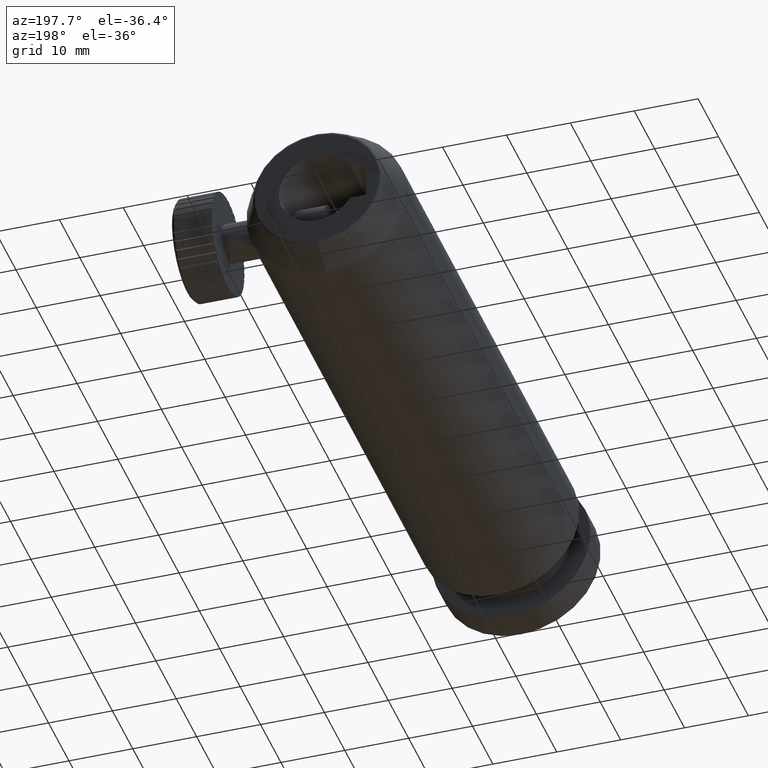
[diagram: clean part render]
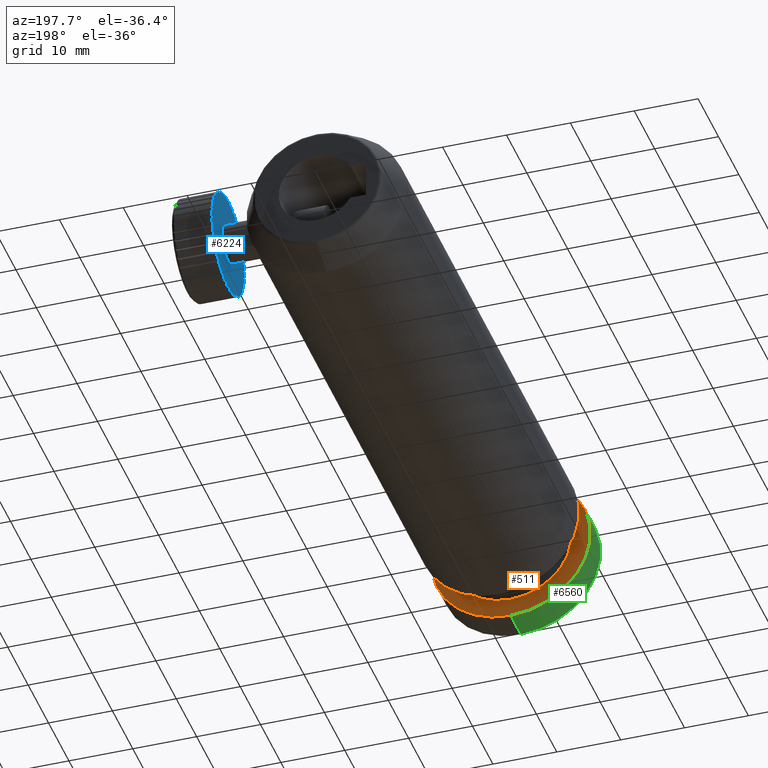
[diagram: same view with three faces highlighted in distinct colors, each labeled with its STEP entity id]
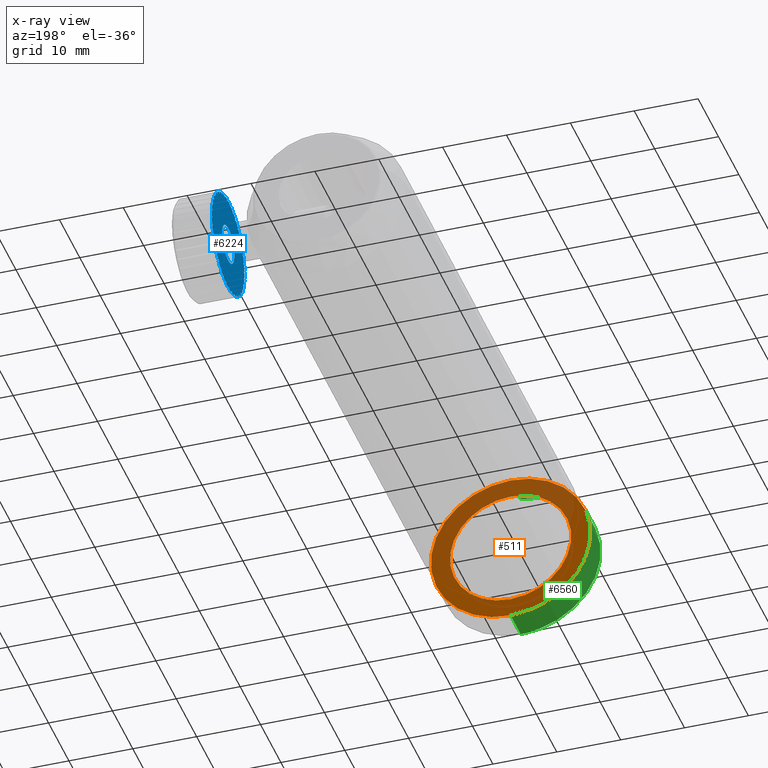
[diagram: x-ray of the same camera — body ghosted, the three highlighted faces saturated]
A machine part, auxiliary view with three faces highlighted in distinct colors.
The next image is the same camera in x-ray (body ghosted, the three faces saturated) — at least one of them is partly hidden behind the body in this view.
Their STEP definitions:

[orange] entity #511 — the highlighted planar face has unit normal (0, -1, -0).
#96 = AXIS2_PLACEMENT_3D ( 'NONE', #1116, #3141, #1638 ) ;
#109 = ORIENTED_EDGE ( 'NONE', *, *, #530, .T. ) ;
#264 = EDGE_LOOP ( 'NONE', ( #2745, #109 ) ) ;
#485 = ORIENTED_EDGE ( 'NONE', *, *, #8267, .F. ) ;
#511 = ADVANCED_FACE ( 'NONE', ( #5561, #2002 ), #8987, .F. ) ;
#530 = EDGE_CURVE ( 'NONE', #1354, #6662, #8390, .T. ) ;
#1116 = CARTESIAN_POINT ( 'NONE',  ( -3.204778668925413854, -7.313612059609842397, 1.686509214775364569E-15 ) ) ;
#1354 = VERTEX_POINT ( 'NONE', #5751 ) ;
#1451 = AXIS2_PLACEMENT_3D ( 'NONE', #5882, #7440, #4579 ) ;
#1638 = DIRECTION ( 'NONE',  ( 0.0000000000000000000, 0.0000000000000000000, -1.000000000000000000 ) ) ;
#1916 = DIRECTION ( 'NONE',  ( 0.0000000000000000000, -1.000000000000000000, -0.0000000000000000000 ) ) ;
#2002 = FACE_OUTER_BOUND ( 'NONE', #7203, .T. ) ;
#2172 = CIRCLE ( 'NONE', #96, 9.500000000000000000 ) ;
#2316 = CARTESIAN_POINT ( 'NONE',  ( -3.204778668925413854, -7.313612059609838845, 1.686509214775364569E-15 ) ) ;
#2682 = DIRECTION ( 'NONE',  ( 0.0000000000000000000, 0.0000000000000000000, -1.000000000000000000 ) ) ;
#2724 = AXIS2_PLACEMENT_3D ( 'NONE', #7679, #1916, #2682 ) ;
#2745 = ORIENTED_EDGE ( 'NONE', *, *, #6217, .T. ) ;
#3141 = DIRECTION ( 'NONE',  ( -0.0000000000000000000, -1.000000000000000000, -0.0000000000000000000 ) ) ;
#3622 = EDGE_CURVE ( 'NONE', #8406, #3910, #8814, .T. ) ;
#3751 = DIRECTION ( 'NONE',  ( 0.0000000000000000000, 0.0000000000000000000, -1.000000000000000000 ) ) ;
#3910 = VERTEX_POINT ( 'NONE', #8034 ) ;
#4080 = AXIS2_PLACEMENT_3D ( 'NONE', #2316, #4359, #3751 ) ;
#4359 = DIRECTION ( 'NONE',  ( -0.0000000000000000000, -1.000000000000000000, -0.0000000000000000000 ) ) ;
#4523 = CARTESIAN_POINT ( 'NONE',  ( -3.204778668925413854, -7.313612059609842397, -9.499999999999998224 ) ) ;
#4579 = DIRECTION ( 'NONE',  ( 0.0000000000000000000, 0.0000000000000000000, -1.000000000000000000 ) ) ;
#4770 = DIRECTION ( 'NONE',  ( -0.0000000000000000000, -1.000000000000000000, -0.0000000000000000000 ) ) ;
#5376 = DIRECTION ( 'NONE',  ( 0.0000000000000000000, 0.0000000000000000000, -1.000000000000000000 ) ) ;
#5423 = CIRCLE ( 'NONE', #1451, 12.50000000000000000 ) ;
#5561 = FACE_BOUND ( 'NONE', #264, .T. ) ;
#5751 = CARTESIAN_POINT ( 'NONE',  ( -3.204778668925412521, -7.313612059609842397, 9.500000000000001776 ) ) ;
#5882 = CARTESIAN_POINT ( 'NONE',  ( -3.204778668925413854, -7.313612059609838845, 1.686509214775364569E-15 ) ) ;
#6039 = ORIENTED_EDGE ( 'NONE', *, *, #3622, .F. ) ;
#6217 = EDGE_CURVE ( 'NONE', #6662, #1354, #2172, .T. ) ;
#6456 = AXIS2_PLACEMENT_3D ( 'NONE', #8338, #4770, #5376 ) ;
#6662 = VERTEX_POINT ( 'NONE', #4523 ) ;
#7203 = EDGE_LOOP ( 'NONE', ( #6039, #485 ) ) ;
#7440 = DIRECTION ( 'NONE',  ( -0.0000000000000000000, -1.000000000000000000, -0.0000000000000000000 ) ) ;
#7679 = CARTESIAN_POINT ( 'NONE',  ( 6.295221331074586146, -7.313612059609842397, 1.686509214775364569E-15 ) ) ;
#8034 = CARTESIAN_POINT ( 'NONE',  ( -3.204778668925412077, -7.313612059609838845, 12.50000000000000178 ) ) ;
#8267 = EDGE_CURVE ( 'NONE', #3910, #8406, #5423, .T. ) ;
#8338 = CARTESIAN_POINT ( 'NONE',  ( -3.204778668925413854, -7.313612059609842397, 1.686509214775364569E-15 ) ) ;
#8390 = CIRCLE ( 'NONE', #6456, 9.500000000000000000 ) ;
#8406 = VERTEX_POINT ( 'NONE', #8752 ) ;
#8752 = CARTESIAN_POINT ( 'NONE',  ( -3.204778668925413854, -7.313612059609838845, -12.49999999999999822 ) ) ;
#8814 = CIRCLE ( 'NONE', #4080, 12.50000000000000000 ) ;
#8987 = PLANE ( 'NONE',  #2724 ) ;

[blue] entity #6224 — the highlighted planar face has unit normal (1, 0, -0).
#2 = VERTEX_POINT ( 'NONE', #5621 ) ;
#13 = DIRECTION ( 'NONE',  ( 8.998989808019615434E-17, 0.8899915664936548509, 0.4559769857900399792 ) ) ;
#27 = ORIENTED_EDGE ( 'NONE', *, *, #2860, .T. ) ;
#29 = AXIS2_PLACEMENT_3D ( 'NONE', #765, #7783, #8582 ) ;
#39 = ORIENTED_EDGE ( 'NONE', *, *, #1501, .T. ) ;
#41 = CARTESIAN_POINT ( 'NONE',  ( 13.73128916436950853, 74.89310580836581721, -7.290699061056433727 ) ) ;
#43 = VECTOR ( 'NONE', #74, 1000.000000000000000 ) ;
#44 = DIRECTION ( 'NONE',  ( 0.0000000000000000000, 0.9987437986324323447, -0.05010813001160038804 ) ) ;
#46 = EDGE_CURVE ( 'NONE', #7963, #338, #1102, .T. ) ;
#55 = EDGE_CURVE ( 'NONE', #7542, #5631, #6970, .T. ) ;
#59 = ORIENTED_EDGE ( 'NONE', *, *, #3749, .T. ) ;
#74 = DIRECTION ( 'NONE',  ( -1.320547068448339951E-16, 0.8398834364820617626, -0.5427668128423868144 ) ) ;
#77 = VERTEX_POINT ( 'NONE', #7177 ) ;
#117 = ORIENTED_EDGE ( 'NONE', *, *, #960, .T. ) ;
#140 = LINE ( 'NONE', #885, #2302 ) ;
#142 = CARTESIAN_POINT ( 'NONE',  ( 13.73128916436950853, 86.02758436295204092, -1.586076499669137663 ) ) ;
#144 = VERTEX_POINT ( 'NONE', #2967 ) ;
#145 = DIRECTION ( 'NONE',  ( -2.220446049250315053E-16, -0.05010813001159217239, -0.9987437986324326777 ) ) ;
#151 = DIRECTION ( 'NONE',  ( -1.613317747512337010E-16, 0.7328732519258960298, -0.6803651935626646718 ) ) ;
#156 = ORIENTED_EDGE ( 'NONE', *, *, #1357, .T. ) ;
#176 = CARTESIAN_POINT ( 'NONE',  ( 13.73128916436950853, 86.09717246854674499, 1.191422741548308517 ) ) ;
#179 = DIRECTION ( 'NONE',  ( -2.220446049250316039E-16, -0.05010813001158746088, -0.9987437986324328998 ) ) ;
#187 = ORIENTED_EDGE ( 'NONE', *, *, #5873, .T. ) ;
#188 = VECTOR ( 'NONE', #5679, 999.9999999999998863 ) ;
#192 = CARTESIAN_POINT ( 'NONE',  ( 13.73128916436950853, 74.17867116652152504, -2.460774081593925189 ) ) ;
#196 = DIRECTION ( 'NONE',  ( 8.998989808019804021E-17, 0.8899915664936506321, 0.4559769857900481949 ) ) ;
#206 = CARTESIAN_POINT ( 'NONE',  ( 13.73128916436951030, 78.37805153768454147, 3.820195029769057449 ) ) ;
#221 = CARTESIAN_POINT ( 'NONE',  ( 13.73128916436950853, 72.75077113533983209, -1.041486893174356387 ) ) ;
#227 = EDGE_CURVE ( 'NONE', #3844, #5682, #4279, .T. ) ;
#230 = CARTESIAN_POINT ( 'NONE',  ( 13.73128916436951208, 78.58725298048297248, 7.989950389059462310 ) ) ;
#234 = DIRECTION ( 'NONE',  ( 1.000000000000000000, 1.264548628736567753E-17, -2.220446049250312588E-16 ) ) ;
#248 = CIRCLE ( 'NONE', #1447, 8.000000000000001776 ) ;
#266 = LINE ( 'NONE', #1055, #7404 ) ;
#276 = VERTEX_POINT ( 'NONE', #5972 ) ;
#298 = CARTESIAN_POINT ( 'NONE',  ( 13.73128916436950853, 71.68897242169948925, -4.667289532210044278 ) ) ;
#308 = CARTESIAN_POINT ( 'NONE',  ( 13.73128916436951208, 82.40744801025191180, 7.798286791765145942 ) ) ;
#309 = AXIS2_PLACEMENT_3D ( 'NONE', #5818, #5861, #4435 ) ;
#312 = VECTOR ( 'NONE', #145, 1000.000000000000114 ) ;
#316 = CARTESIAN_POINT ( 'NONE',  ( 13.73128916436951208, 74.76705795071390526, 8.181613986353829304 ) ) ;
#323 = CIRCLE ( 'NONE', #8762, 3.000000000000006217 ) ;
#327 = CARTESIAN_POINT ( 'NONE',  ( 13.73128916436950853, 84.59504946131579572, 0.05422937272359264899 ) ) ;
#337 = CIRCLE ( 'NONE', #1085, 8.000000000000001776 ) ;
#338 = VERTEX_POINT ( 'NONE', #6620 ) ;
#342 = ORIENTED_EDGE ( 'NONE', *, *, #7085, .F. ) ;
#356 = CARTESIAN_POINT ( 'NONE',  ( 13.73128916436951030, 84.63253750310724399, 5.439779682568956609 ) ) ;
#357 = ORIENTED_EDGE ( 'NONE', *, *, #6696, .F. ) ;
#365 = DIRECTION ( 'NONE',  ( 9.876522349386276591E-17, -0.9213741878222364567, 0.3886767371671657756 ) ) ;
#367 = CARTESIAN_POINT ( 'NONE',  ( 13.73128916436951030, 72.31707823213572794, 6.057660499598634729 ) ) ;
#410 = VERTEX_POINT ( 'NONE', #4500 ) ;
#411 = VECTOR ( 'NONE', #5163, 1000.000000000000114 ) ;
#418 = EDGE_CURVE ( 'NONE', #4639, #144, #5888, .T. ) ;
#425 = CARTESIAN_POINT ( 'NONE',  ( 13.73128916436950853, 78.18638794039016204, 3.107594686295564823E-15 ) ) ;
#436 = VERTEX_POINT ( 'NONE', #2050 ) ;
#447 = EDGE_CURVE ( 'NONE', #2000, #5467, #8939, .T. ) ;
#464 = CARTESIAN_POINT ( 'NONE',  ( 13.73128916436951208, 79.97754706518354340, 6.153505692231701296 ) ) ;
#481 = VECTOR ( 'NONE', #8884, 1000.000000000000114 ) ;
#487 = ORIENTED_EDGE ( 'NONE', *, *, #1427, .T. ) ;
#492 = VERTEX_POINT ( 'NONE', #9031 ) ;
#536 = VERTEX_POINT ( 'NONE', #613 ) ;
#545 = LINE ( 'NONE', #5399, #7935 ) ;
#551 = CIRCLE ( 'NONE', #3048, 8.000000000000001776 ) ;
#564 = DIRECTION ( 'NONE',  ( -2.044393329701940313E-16, 0.4559769857900368151, -0.8899915664936565163 ) ) ;
#565 = VECTOR ( 'NONE', #4882, 1000.000000000000000 ) ;
#570 = DIRECTION ( 'NONE',  ( 2.044393329701938094E-16, -0.4559769857900387580, 0.8899915664936555171 ) ) ;
#594 = VERTEX_POINT ( 'NONE', #6844 ) ;
#608 = DIRECTION ( 'NONE',  ( -1.613317747512323205E-16, 0.7328732519259019140, -0.6803651935626582326 ) ) ;
#611 = ORIENTED_EDGE ( 'NONE', *, *, #5327, .T. ) ;
#613 = CARTESIAN_POINT ( 'NONE',  ( 13.73128916436951208, 84.99482342406659541, 3.488223941293863373 ) ) ;
#617 = DIRECTION ( 'NONE',  ( -2.044393329701931931E-16, 0.4559769857900449197, -0.8899915664936522974 ) ) ;
#623 = ORIENTED_EDGE ( 'NONE', *, *, #3752, .F. ) ;
#638 = DIRECTION ( 'NONE',  ( 0.0000000000000000000, 0.9987437986324323447, -0.05010813001160038804 ) ) ;
#655 = EDGE_CURVE ( 'NONE', #6344, #864, #2609, .T. ) ;
#682 = DIRECTION ( 'NONE',  ( 0.0000000000000000000, 0.9987437986324323447, -0.05010813001160038804 ) ) ;
#693 = VECTOR ( 'NONE', #1450, 1000.000000000000000 ) ;
#697 = DIRECTION ( 'NONE',  ( 0.0000000000000000000, 0.9987437986324323447, -0.05010813001160038804 ) ) ;
#721 = CARTESIAN_POINT ( 'NONE',  ( 13.73128916436950853, 80.03945559766505369, -3.623065192956498759 ) ) ;
#744 = DIRECTION ( 'NONE',  ( 1.000000000000000000, 1.264548628736567753E-17, -2.220446049250312588E-16 ) ) ;
#746 = DIRECTION ( 'NONE',  ( 1.000000000000000000, 1.264548628736567753E-17, -2.220446049250312588E-16 ) ) ;
#755 = DIRECTION ( 'NONE',  ( 0.0000000000000000000, 0.9987437986324323447, -0.05010813001160038804 ) ) ;
#764 = ORIENTED_EDGE ( 'NONE', *, *, #6161, .F. ) ;
#765 = CARTESIAN_POINT ( 'NONE',  ( 13.73128916436950853, 78.18638794039016204, 3.107594686295564823E-15 ) ) ;
#779 = CARTESIAN_POINT ( 'NONE',  ( 13.73128916436950853, 81.18261933628747329, -0.1503243900347981110 ) ) ;
#814 = EDGE_CURVE ( 'NONE', #3949, #2606, #3268, .T. ) ;
#817 = ORIENTED_EDGE ( 'NONE', *, *, #1875, .F. ) ;
#818 = DIRECTION ( 'NONE',  ( 2.003473315269989210E-16, 0.3886767371671644988, 0.9213741878222370119 ) ) ;
#823 = DIRECTION ( 'NONE',  ( 2.428612866367320699E-17, -0.9987437986324327888, 0.05010813001159098584 ) ) ;
#831 = LINE ( 'NONE', #3595, #4190 ) ;
#834 = CARTESIAN_POINT ( 'NONE',  ( 13.73128916436951030, 77.15204820585033474, 4.587738455246196168 ) ) ;
#836 = CARTESIAN_POINT ( 'NONE',  ( 13.73128916436951030, 70.59550850492912843, -0.9492362173319329743 ) ) ;
#837 = ORIENTED_EDGE ( 'NONE', *, *, #2184, .F. ) ;
#847 = AXIS2_PLACEMENT_3D ( 'NONE', #2534, #9022, #2581 ) ;
#864 = VERTEX_POINT ( 'NONE', #3267 ) ;
#868 = VERTEX_POINT ( 'NONE', #8226 ) ;
#876 = DIRECTION ( 'NONE',  ( -8.998989808019662273E-17, -0.8899915664936537407, -0.4559769857900420331 ) ) ;
#885 = CARTESIAN_POINT ( 'NONE',  ( 13.73128916436951030, 71.43770449786939025, 2.577331658515752633 ) ) ;
#887 = CARTESIAN_POINT ( 'NONE',  ( 13.73128916436951030, 79.67472201472065763, 4.461172996351930209 ) ) ;
#889 = ORIENTED_EDGE ( 'NONE', *, *, #2434, .F. ) ;
#905 = CARTESIAN_POINT ( 'NONE',  ( 13.73128916436951208, 79.89063134406481481, 7.457751297880049535 ) ) ;
#908 = EDGE_CURVE ( 'NONE', #2268, #77, #6093, .T. ) ;
#911 = CARTESIAN_POINT ( 'NONE',  ( 13.73128916436950853, 77.99472434309589630, -3.820195029769056561 ) ) ;
#913 = VECTOR ( 'NONE', #6553, 1000.000000000000227 ) ;
#951 = EDGE_CURVE ( 'NONE', #3699, #1580, #5312, .T. ) ;
#952 = VERTEX_POINT ( 'NONE', #1109 ) ;
#960 = EDGE_CURVE ( 'NONE', #7878, #6983, #1805, .T. ) ;
#961 = CARTESIAN_POINT ( 'NONE',  ( 13.73128916436950853, 76.20915476978646552, -7.751809400976291009 ) ) ;
#1005 = VECTOR ( 'NONE', #4162, 1000.000000000000227 ) ;
#1022 = CARTESIAN_POINT ( 'NONE',  ( 13.73128916436950853, 78.18638794039016204, 3.107594686295564823E-15 ) ) ;
#1055 = CARTESIAN_POINT ( 'NONE',  ( 13.73128916436951208, 79.62780201304350669, 8.310618066724272168 ) ) ;
#1070 = CIRCLE ( 'NONE', #8001, 8.000000000000001776 ) ;
#1085 = AXIS2_PLACEMENT_3D ( 'NONE', #6175, #6268, #2802 ) ;
#1090 = ORIENTED_EDGE ( 'NONE', *, *, #5027, .T. ) ;
#1102 = LINE ( 'NONE', #3911, #7710 ) ;
#1103 = CARTESIAN_POINT ( 'NONE',  ( 13.73128916436950853, 78.18638794039016204, 3.107594686295564823E-15 ) ) ;
#1107 = VERTEX_POINT ( 'NONE', #8905 ) ;
#1109 = CARTESIAN_POINT ( 'NONE',  ( 13.73128916436950853, 70.20900300553785200, 0.6011069798225449068 ) ) ;
#1119 = LINE ( 'NONE', #3975, #6293 ) ;
#1143 = VECTOR ( 'NONE', #7173, 1000.000000000000114 ) ;
#1146 = VECTOR ( 'NONE', #1628, 1000.000000000000227 ) ;
#1158 = DIRECTION ( 'NONE',  ( 1.000000000000000000, 1.264548628736567753E-17, -2.220446049250312588E-16 ) ) ;
#1169 = VERTEX_POINT ( 'NONE', #2552 ) ;
#1206 = DIRECTION ( 'NONE',  ( 0.0000000000000000000, 0.9987437986324323447, -0.05010813001160038804 ) ) ;
#1215 = CARTESIAN_POINT ( 'NONE',  ( 13.73128916436951030, 85.15934087095506300, 3.742800078567718458 ) ) ;
#1233 = EDGE_CURVE ( 'NONE', #3944, #6098, #7685, .T. ) ;
#1243 = LINE ( 'NONE', #4654, #3354 ) ;
#1252 = LINE ( 'NONE', #2718, #7869 ) ;
#1280 = VERTEX_POINT ( 'NONE', #6435 ) ;
#1306 = EDGE_CURVE ( 'NONE', #1968, #8515, #1366, .T. ) ;
#1307 = AXIS2_PLACEMENT_3D ( 'NONE', #2653, #8453, #682 ) ;
#1318 = EDGE_CURVE ( 'NONE', #3295, #7881, #3530, .T. ) ;
#1320 = VERTEX_POINT ( 'NONE', #2831 ) ;
#1321 = CARTESIAN_POINT ( 'NONE',  ( 13.73128916436950853, 70.60267439255332533, -2.547015670221918882 ) ) ;
#1322 = ORIENTED_EDGE ( 'NONE', *, *, #6591, .T. ) ;
#1323 = ORIENTED_EDGE ( 'NONE', *, *, #447, .T. ) ;
#1336 = CARTESIAN_POINT ( 'NONE',  ( 13.73128916436950853, 70.87566415948234066, -2.252957567125659644 ) ) ;
#1344 = ORIENTED_EDGE ( 'NONE', *, *, #2349, .T. ) ;
#1346 = LINE ( 'NONE', #3464, #3275 ) ;
#1357 = EDGE_CURVE ( 'NONE', #492, #1573, #8580, .T. ) ;
#1359 = AXIS2_PLACEMENT_3D ( 'NONE', #2899, #9157, #2716 ) ;
#1366 = LINE ( 'NONE', #721, #7864 ) ;
#1370 = DIRECTION ( 'NONE',  ( 0.0000000000000000000, 0.9987437986324323447, -0.05010813001160038804 ) ) ;
#1377 = ORIENTED_EDGE ( 'NONE', *, *, #8208, .T. ) ;
#1409 = ORIENTED_EDGE ( 'NONE', *, *, #5670, .T. ) ;
#1427 = EDGE_CURVE ( 'NONE', #3271, #1827, #1725, .T. ) ;
#1447 = AXIS2_PLACEMENT_3D ( 'NONE', #8706, #8133, #5182 ) ;
#1449 = ORIENTED_EDGE ( 'NONE', *, *, #7774, .T. ) ;
#1450 = DIRECTION ( 'NONE',  ( -1.801532043065203097E-16, -0.5427668128423855931, -0.8398834364820625398 ) ) ;
#1454 = CARTESIAN_POINT ( 'NONE',  ( 13.73128916436950853, 77.80306074580143161, -7.640390059538105128 ) ) ;
#1501 = EDGE_CURVE ( 'NONE', #8351, #7966, #8670, .T. ) ;
#1506 = CARTESIAN_POINT ( 'NONE',  ( 13.73128916436951030, 80.00224223571790105, 5.228125684998405909 ) ) ;
#1510 = VERTEX_POINT ( 'NONE', #1685 ) ;
#1525 = VECTOR ( 'NONE', #3769, 1000.000000000000000 ) ;
#1538 = ORIENTED_EDGE ( 'NONE', *, *, #655, .F. ) ;
#1544 = CARTESIAN_POINT ( 'NONE',  ( 13.73128916436950853, 78.18638794039016204, 3.107594686295564823E-15 ) ) ;
#1566 = CARTESIAN_POINT ( 'NONE',  ( 13.73128916436951208, 73.51909840818012754, 6.497415518690703884 ) ) ;
#1573 = VERTEX_POINT ( 'NONE', #2362 ) ;
#1579 = CARTESIAN_POINT ( 'NONE',  ( 13.73128916436950853, 76.60031144072098641, -7.841196422561874435 ) ) ;
#1580 = VERTEX_POINT ( 'NONE', #8189 ) ;
#1589 = CIRCLE ( 'NONE', #7781, 8.000000000000001776 ) ;
#1592 = EDGE_CURVE ( 'NONE', #536, #2833, #5416, .T. ) ;
#1594 = LINE ( 'NONE', #6348, #1143 ) ;
#1595 = VECTOR ( 'NONE', #8737, 999.9999999999998863 ) ;
#1622 = DIRECTION ( 'NONE',  ( 1.000000000000000000, 1.264548628736567753E-17, -2.220446049250312588E-16 ) ) ;
#1628 = DIRECTION ( 'NONE',  ( -6.247480880464422671E-17, 0.9748694507032712453, -0.2227769155130353840 ) ) ;
#1630 = DIRECTION ( 'NONE',  ( 2.220446049250314560E-16, 0.05010813001159439284, 0.9987437986324325667 ) ) ;
#1632 = DIRECTION ( 'NONE',  ( 2.220446049250313574E-16, 0.05010813001159915986, 0.9987437986324323447 ) ) ;
#1640 = CARTESIAN_POINT ( 'NONE',  ( 13.73128916436950853, 71.93115894591579718, -4.987194624905586515 ) ) ;
#1647 = ORIENTED_EDGE ( 'NONE', *, *, #4883, .T. ) ;
#1656 = LINE ( 'NONE', #5899, #1525 ) ;
#1665 = AXIS2_PLACEMENT_3D ( 'NONE', #1544, #6426, #8529 ) ;
#1670 = DIRECTION ( 'NONE',  ( 1.320547068448343895E-16, -0.8398834364820604304, 0.5427668128423887017 ) ) ;
#1676 = DIRECTION ( 'NONE',  ( 0.0000000000000000000, 0.9987437986324323447, -0.05010813001160038804 ) ) ;
#1682 = CARTESIAN_POINT ( 'NONE',  ( 13.73128916436951208, 78.78749492021273682, 7.977384934852314480 ) ) ;
#1683 = LINE ( 'NONE', #367, #6158 ) ;
#1685 = CARTESIAN_POINT ( 'NONE',  ( 13.73128916436950853, 84.61149622947793603, -4.152166118244263515 ) ) ;
#1693 = CARTESIAN_POINT ( 'NONE',  ( 13.73128916436951030, 77.15204820585034895, 4.587738455246157088 ) ) ;
#1703 = ORIENTED_EDGE ( 'NONE', *, *, #2333, .F. ) ;
#1705 = CARTESIAN_POINT ( 'NONE',  ( 13.73128916436950853, 70.18889761675174555, 0.2003709642383626477 ) ) ;
#1710 = VERTEX_POINT ( 'NONE', #1454 ) ;
#1711 = CARTESIAN_POINT ( 'NONE',  ( 13.73128916436950853, 85.93819734136646105, -1.977233170603666768 ) ) ;
#1715 = DIRECTION ( 'NONE',  ( 5.312223170843857687E-17, 0.9556501674389317191, 0.2945042571406085719 ) ) ;
#1719 = FACE_BOUND ( 'NONE', #4923, .T. ) ;
#1725 = LINE ( 'NONE', #327, #3288 ) ;
#1749 = ORIENTED_EDGE ( 'NONE', *, *, #3741, .F. ) ;
#1752 = DIRECTION ( 'NONE',  ( -2.169600219397496787E-16, 0.2945042571406138454, -0.9556501674389301648 ) ) ;
#1754 = CARTESIAN_POINT ( 'NONE',  ( 13.73128916436951030, 77.68423521360526252, 4.038354092180801658 ) ) ;
#1759 = DIRECTION ( 'NONE',  ( 0.0000000000000000000, 0.9987437986324323447, -0.05010813001160038804 ) ) ;
#1789 = EDGE_CURVE ( 'NONE', #1905, #9060, #7325, .T. ) ;
#1793 = VERTEX_POINT ( 'NONE', #5916 ) ;
#1796 = DIRECTION ( 'NONE',  ( 2.003473315269984773E-16, 0.3886767371671687177, 0.9213741878222352355 ) ) ;
#1804 = CARTESIAN_POINT ( 'NONE',  ( 13.73128916436951208, 76.21265176016518694, 8.532593647656037561 ) ) ;
#1805 = CIRCLE ( 'NONE', #6963, 3.000000000000006217 ) ;
#1824 = VERTEX_POINT ( 'NONE', #8088 ) ;
#1827 = VERTEX_POINT ( 'NONE', #6648 ) ;
#1829 = EDGE_CURVE ( 'NONE', #5014, #7579, #5829, .T. ) ;
#1836 = CARTESIAN_POINT ( 'NONE',  ( 13.73128916436950853, 71.37795245671370026, -3.488223941293810526 ) ) ;
#1866 = EDGE_CURVE ( 'NONE', #6167, #4057, #4489, .T. ) ;
#1867 = CIRCLE ( 'NONE', #6589, 8.000000000000001776 ) ;
#1874 = VECTOR ( 'NONE', #1715, 1000.000000000000114 ) ;
#1875 = EDGE_CURVE ( 'NONE', #1320, #2069, #3341, .T. ) ;
#1889 = CIRCLE ( 'NONE', #4682, 8.000000000000001776 ) ;
#1897 = EDGE_CURVE ( 'NONE', #7725, #2606, #7994, .T. ) ;
#1898 = ORIENTED_EDGE ( 'NONE', *, *, #1306, .T. ) ;
#1905 = VERTEX_POINT ( 'NONE', #142 ) ;
#1935 = DIRECTION ( 'NONE',  ( 0.0000000000000000000, 0.9987437986324323447, -0.05010813001160038804 ) ) ;
#1950 = CARTESIAN_POINT ( 'NONE',  ( 13.73128916436950853, 85.47708700144661975, -3.293282132024319964 ) ) ;
#1968 = VERTEX_POINT ( 'NONE', #6142 ) ;
#1977 = LINE ( 'NONE', #4838, #7106 ) ;
#1997 = EDGE_CURVE ( 'NONE', #7010, #5631, #5498, .T. ) ;
#2000 = VERTEX_POINT ( 'NONE', #8229 ) ;
#2020 = VERTEX_POINT ( 'NONE', #3876 ) ;
#2025 = AXIS2_PLACEMENT_3D ( 'NONE', #1103, #3260, #6086 ) ;
#2028 = VERTEX_POINT ( 'NONE', #8928 ) ;
#2037 = CARTESIAN_POINT ( 'NONE',  ( 13.73128916436950853, 78.18638794039016204, 3.107594686295564823E-15 ) ) ;
#2040 = VECTOR ( 'NONE', #3449, 1000.000000000000000 ) ;
#2050 = CARTESIAN_POINT ( 'NONE',  ( 13.73128916436951208, 74.36116912378217592, 7.026215268910298128 ) ) ;
#2052 = ORIENTED_EDGE ( 'NONE', *, *, #8173, .T. ) ;
#2066 = CARTESIAN_POINT ( 'NONE',  ( 13.73128916436951208, 81.00424314960456229, 8.292193972951436010 ) ) ;
#2069 = VERTEX_POINT ( 'NONE', #3366 ) ;
#2071 = CARTESIAN_POINT ( 'NONE',  ( 13.73128916436950853, 78.18638794039016204, 3.107594686295564823E-15 ) ) ;
#2074 = EDGE_CURVE ( 'NONE', #8717, #8652, #7522, .T. ) ;
#2097 = CARTESIAN_POINT ( 'NONE',  ( 13.73128916436950853, 84.18402498855783733, -5.294180752339921803 ) ) ;
#2113 = ORIENTED_EDGE ( 'NONE', *, *, #7461, .F. ) ;
#2128 = CARTESIAN_POINT ( 'NONE',  ( 13.73128916436950853, 84.59504946131578151, 0.05422937272354852456 ) ) ;
#2136 = CARTESIAN_POINT ( 'NONE',  ( 13.73128916436950853, 79.37781068193844192, -7.910784528156581175 ) ) ;
#2154 = ORIENTED_EDGE ( 'NONE', *, *, #6910, .T. ) ;
#2183 = VERTEX_POINT ( 'NONE', #7021 ) ;
#2184 = EDGE_CURVE ( 'NONE', #4034, #7815, #5481, .T. ) ;
#2205 = CARTESIAN_POINT ( 'NONE',  ( 13.73128916436950853, 78.18638794039016204, 3.107594686295564823E-15 ) ) ;
#2210 = DIRECTION ( 'NONE',  ( 0.0000000000000000000, 0.9987437986324323447, -0.05010813001160038804 ) ) ;
#2211 = ORIENTED_EDGE ( 'NONE', *, *, #8443, .T. ) ;
#2225 = CARTESIAN_POINT ( 'NONE',  ( 13.73128916436951030, 84.44161693486449849, 4.987194624905635365 ) ) ;
#2230 = CARTESIAN_POINT ( 'NONE',  ( 13.73128916436951030, 85.15914793556871132, 1.888910991809861661 ) ) ;
#2236 = CIRCLE ( 'NONE', #7391, 8.000000000000001776 ) ;
#2252 = CARTESIAN_POINT ( 'NONE',  ( 13.73128916436950853, 83.49046617701172579, -1.580309798678035893 ) ) ;
#2253 = ORIENTED_EDGE ( 'NONE', *, *, #8184, .T. ) ;
#2263 = ORIENTED_EDGE ( 'NONE', *, *, #5218, .T. ) ;
#2268 = VERTEX_POINT ( 'NONE', #4991 ) ;
#2286 = CARTESIAN_POINT ( 'NONE',  ( 13.73128916436951030, 70.72863664251013915, 1.704243403674716273 ) ) ;
#2302 = VECTOR ( 'NONE', #3696, 1000.000000000000227 ) ;
#2318 = LINE ( 'NONE', #2920, #7336 ) ;
#2319 = AXIS2_PLACEMENT_3D ( 'NONE', #2205, #2759, #5635 ) ;
#2333 = EDGE_CURVE ( 'NONE', #8011, #5075, #7840, .T. ) ;
#2349 = EDGE_CURVE ( 'NONE', #2853, #2870, #6463, .T. ) ;
#2353 = DIRECTION ( 'NONE',  ( 1.000000000000000000, 1.264548628736567753E-17, -2.220446049250312588E-16 ) ) ;
#2360 = CARTESIAN_POINT ( 'NONE',  ( 13.73128916436951208, 82.35865944742052136, 6.825844304671967677 ) ) ;
#2362 = CARTESIAN_POINT ( 'NONE',  ( 13.73128916436951208, 85.49711172129798342, 2.252957567125715599 ) ) ;
#2377 = CARTESIAN_POINT ( 'NONE',  ( 13.73128916436951208, 83.67040305804516720, 6.828350243981389234 ) ) ;
#2380 = EDGE_CURVE ( 'NONE', #2020, #8075, #6215, .T. ) ;
#2393 = DIRECTION ( 'NONE',  ( 1.000000000000000000, 1.264548628736567753E-17, -2.220446049250312588E-16 ) ) ;
#2413 = DIRECTION ( 'NONE',  ( -9.876522349386143471E-17, 0.9213741878222390103, -0.3886767371671596139 ) ) ;
#2415 = EDGE_CURVE ( 'NONE', #3699, #2870, #6513, .T. ) ;
#2434 = EDGE_CURVE ( 'NONE', #4357, #7215, #2236, .T. ) ;
#2437 = EDGE_CURVE ( 'NONE', #2744, #6530, #8602, .T. ) ;
#2446 = DIRECTION ( 'NONE',  ( -8.998989808019759648E-17, -0.8899915664936516313, -0.4559769857900462520 ) ) ;
#2472 = CARTESIAN_POINT ( 'NONE',  ( 13.73128916436951208, 80.16362111099380172, 7.751809400976313214 ) ) ;
#2474 = ORIENTED_EDGE ( 'NONE', *, *, #4678, .T. ) ;
#2495 = ORIENTED_EDGE ( 'NONE', *, *, #7573, .T. ) ;
#2510 = ORIENTED_EDGE ( 'NONE', *, *, #6568, .T. ) ;
#2533 = EDGE_CURVE ( 'NONE', #6098, #7245, #8869, .T. ) ;
#2534 = CARTESIAN_POINT ( 'NONE',  ( 13.73128916436950853, 78.18638794039016204, 3.107594686295564823E-15 ) ) ;
#2536 = VECTOR ( 'NONE', #7784, 1000.000000000000000 ) ;
#2552 = CARTESIAN_POINT ( 'NONE',  ( 13.73128916436951208, 81.15976497971892911, 7.048512536840140896 ) ) ;
#2557 = ORIENTED_EDGE ( 'NONE', *, *, #2533, .T. ) ;
#2581 = DIRECTION ( 'NONE',  ( 0.0000000000000000000, 0.9987437986324323447, -0.05010813001160038804 ) ) ;
#2599 = ORIENTED_EDGE ( 'NONE', *, *, #2726, .F. ) ;
#2606 = VERTEX_POINT ( 'NONE', #2472 ) ;
#2609 = CIRCLE ( 'NONE', #1665, 8.000000000000001776 ) ;
#2611 = DIRECTION ( 'NONE',  ( 1.801532043065193729E-16, 0.5427668128423914773, 0.8398834364820586540 ) ) ;
#2612 = CIRCLE ( 'NONE', #8976, 8.000000000000001776 ) ;
#2614 = EDGE_CURVE ( 'NONE', #4606, #1280, #3493, .T. ) ;
#2622 = AXIS2_PLACEMENT_3D ( 'NONE', #4042, #2751, #6860 ) ;
#2629 = LINE ( 'NONE', #6877, #481 ) ;
#2649 = CARTESIAN_POINT ( 'NONE',  ( 13.73128916436950853, 78.18638794039016204, 3.107594686295564823E-15 ) ) ;
#2653 = CARTESIAN_POINT ( 'NONE',  ( 13.73128916436950853, 78.18638794039016204, 3.107594686295564823E-15 ) ) ;
#2657 = DIRECTION ( 'NONE',  ( 1.000000000000000000, 1.264548628736567753E-17, -2.220446049250312588E-16 ) ) ;
#2662 = EDGE_CURVE ( 'NONE', #1573, #3579, #1977, .T. ) ;
#2677 = CARTESIAN_POINT ( 'NONE',  ( 13.73128916436950853, 72.08711162088199842, -4.617502396132228348 ) ) ;
#2688 = DIRECTION ( 'NONE',  ( 1.000000000000000000, 1.264548628736567753E-17, -2.220446049250312588E-16 ) ) ;
#2692 = VECTOR ( 'NONE', #4276, 1000.000000000000000 ) ;
#2716 = DIRECTION ( 'NONE',  ( 0.0000000000000000000, 0.9987437986324323447, -0.05010813001160038804 ) ) ;
#2718 = CARTESIAN_POINT ( 'NONE',  ( 13.73128916436950853, 81.92767958184637678, -2.849550784555859639 ) ) ;
#2726 = EDGE_CURVE ( 'NONE', #5930, #1280, #337, .T. ) ;
#2741 = VERTEX_POINT ( 'NONE', #7743 ) ;
#2742 = CARTESIAN_POINT ( 'NONE',  ( 13.73128916436951208, 74.71826938788248640, 7.209171499260653704 ) ) ;
#2744 = VERTEX_POINT ( 'NONE', #4934 ) ;
#2747 = DIRECTION ( 'NONE',  ( 0.0000000000000000000, 0.9987437986324323447, -0.05010813001160038804 ) ) ;
#2751 = DIRECTION ( 'NONE',  ( 1.000000000000000000, 1.264548628736567753E-17, -2.220446049250312588E-16 ) ) ;
#2759 = DIRECTION ( 'NONE',  ( 1.000000000000000000, 1.264548628736567753E-17, -2.220446049250312588E-16 ) ) ;
#2763 = VECTOR ( 'NONE', #1670, 1000.000000000000114 ) ;
#2788 = DIRECTION ( 'NONE',  ( 0.0000000000000000000, 0.9987437986324323447, -0.05010813001160038804 ) ) ;
#2798 = CARTESIAN_POINT ( 'NONE',  ( 13.73128916436950853, 84.79445245982829249, -4.509266382344575774 ) ) ;
#2802 = DIRECTION ( 'NONE',  ( 0.0000000000000000000, 0.9987437986324323447, -0.05010813001160038804 ) ) ;
#2819 = LINE ( 'NONE', #5084, #693 ) ;
#2831 = CARTESIAN_POINT ( 'NONE',  ( 13.73128916436951030, 70.73973620436754572, 2.923589903251017308 ) ) ;
#2832 = VECTOR ( 'NONE', #7429, 1000.000000000000114 ) ;
#2833 = VERTEX_POINT ( 'NONE', #4332 ) ;
#2849 = CARTESIAN_POINT ( 'NONE',  ( 13.73128916436951030, 71.62306897267011152, 4.421930475252423776 ) ) ;
#2853 = VERTEX_POINT ( 'NONE', #4058 ) ;
#2860 = EDGE_CURVE ( 'NONE', #1905, #6409, #1252, .T. ) ;
#2861 = DIRECTION ( 'NONE',  ( 0.0000000000000000000, 0.9987437986324323447, -0.05010813001160038804 ) ) ;
#2870 = VERTEX_POINT ( 'NONE', #6876 ) ;
#2889 = CARTESIAN_POINT ( 'NONE',  ( 13.73128916436950853, 70.48450748854781978, -2.163570545540074885 ) ) ;
#2899 = CARTESIAN_POINT ( 'NONE',  ( 13.73128916436950853, 78.18638794039016204, 3.107594686295564823E-15 ) ) ;
#2908 = CARTESIAN_POINT ( 'NONE',  ( 13.73128916436950853, 80.43934550751585277, -7.310723780907815161 ) ) ;
#2920 = CARTESIAN_POINT ( 'NONE',  ( 13.73128916436951030, 80.00224223571791526, 5.228125684998450318 ) ) ;
#2949 = LINE ( 'NONE', #834, #1005 ) ;
#2967 = CARTESIAN_POINT ( 'NONE',  ( 13.73128916436950853, 79.13562415772213399, -7.590879435461038049 ) ) ;
#2971 = ORIENTED_EDGE ( 'NONE', *, *, #2380, .F. ) ;
#2982 = AXIS2_PLACEMENT_3D ( 'NONE', #7688, #6726, #1370 ) ;
#2999 = CARTESIAN_POINT ( 'NONE',  ( 13.73128916436951208, 74.76705795071386262, 8.181613986353813317 ) ) ;
#3008 = CARTESIAN_POINT ( 'NONE',  ( 13.73128916436950853, 70.22581627615576849, -0.7932835423657355056 ) ) ;
#3010 = CARTESIAN_POINT ( 'NONE',  ( 13.73128916436951208, 77.02013003929818069, 6.301882720489071943 ) ) ;
#3021 = DIRECTION ( 'NONE',  ( -2.428612866367476006E-17, 0.9987437986324324557, -0.05010813001159796637 ) ) ;
#3027 = LINE ( 'NONE', #911, #3583 ) ;
#3033 = ORIENTED_EDGE ( 'NONE', *, *, #5019, .T. ) ;
#3047 = DIRECTION ( 'NONE',  ( 1.000000000000000000, 1.317510786072415822E-17, -2.220711766511247388E-16 ) ) ;
#3048 = AXIS2_PLACEMENT_3D ( 'NONE', #2649, #3392, #2747 ) ;
#3059 = ORIENTED_EDGE ( 'NONE', *, *, #7523, .T. ) ;
#3070 = DIRECTION ( 'NONE',  ( -2.144540064596724566E-16, -0.2227769155130252254, -0.9748694507032734657 ) ) ;
#3076 = EDGE_LOOP ( 'NONE', ( #623, #7603, #7677, #5153, #2495, #4215, #4123, #1322, #2052, #2971, #5804, #7388, #2599, #2474, #3888, #3217, #8776, #6806, #3469, #156, #4458, #6578, #487, #6750, #4342, #39, #6957, #6684, #27, #2211, #3994, #1898, #4447, #4916, #1409, #3822, #7231, #4277, #2263, #4127, #5729, #2154, #7175, #7944, #4999, #342, #5236, #1090, #5436, #4144, #6826, #6690, #4574, #7500, #1749, #6471, #2557, #764, #59, #7276, #1703, #4509, #1344, #3441, #6643, #3955, #5463, #1449, #1647, #889, #3059, #7091, #837, #187, #5295, #4371, #3033, #7274, #6505, #8759, #5011, #7714, #5599, #6912, #817, #6420, #5374, #8340, #7453, #1323, #7060, #8161, #3836, #2113, #2510, #3129, #6798, #7919, #4533, #357, #2253, #5268, #6935, #4723, #611, #1538, #3979, #1377 ) ) ;
#3081 = CIRCLE ( 'NONE', #29, 8.000000000000001776 ) ;
#3107 = EDGE_CURVE ( 'NONE', #1320, #868, #831, .T. ) ;
#3129 = ORIENTED_EDGE ( 'NONE', *, *, #227, .T. ) ;
#3147 = EDGE_CURVE ( 'NONE', #2268, #5917, #3898, .T. ) ;
#3174 = DIRECTION ( 'NONE',  ( 1.000000000000000000, 1.264548628736567753E-17, -2.220446049250312588E-16 ) ) ;
#3186 = VECTOR ( 'NONE', #1630, 1000.000000000000114 ) ;
#3194 = VECTOR ( 'NONE', #9115, 1000.000000000000114 ) ;
#3217 = ORIENTED_EDGE ( 'NONE', *, *, #5105, .F. ) ;
#3225 = DIRECTION ( 'NONE',  ( 0.0000000000000000000, 0.9987437986324323447, -0.05010813001160030478 ) ) ;
#3257 = CARTESIAN_POINT ( 'NONE',  ( 13.73128916436951030, 85.15914793556871132, 1.888910991809811701 ) ) ;
#3260 = DIRECTION ( 'NONE',  ( 1.000000000000000000, 1.264548628736567753E-17, -2.220446049250312588E-16 ) ) ;
#3267 = CARTESIAN_POINT ( 'NONE',  ( 13.73128916436951208, 77.39310439802444819, 7.960571664234408651 ) ) ;
#3268 = CIRCLE ( 'NONE', #4463, 8.000000000000001776 ) ;
#3271 = VERTEX_POINT ( 'NONE', #176 ) ;
#3273 = DIRECTION ( 'NONE',  ( 1.241232669358725621E-16, 0.7972910221579309065, 0.6035950844617288258 ) ) ;
#3275 = VECTOR ( 'NONE', #4994, 1000.000000000000114 ) ;
#3278 = CARTESIAN_POINT ( 'NONE',  ( 13.73128916436950853, 72.89220718805022159, -5.997637048167653973 ) ) ;
#3288 = VECTOR ( 'NONE', #4543, 1000.000000000000227 ) ;
#3295 = VERTEX_POINT ( 'NONE', #1705 ) ;
#3323 = LINE ( 'NONE', #3373, #4234 ) ;
#3328 = AXIS2_PLACEMENT_3D ( 'NONE', #8294, #2688, #8343 ) ;
#3341 = CIRCLE ( 'NONE', #5265, 8.000000000000001776 ) ;
#3350 = CARTESIAN_POINT ( 'NONE',  ( 13.73128916436950853, 70.27560341223357909, -1.191422741548249897 ) ) ;
#3353 = DIRECTION ( 'NONE',  ( 5.312223170844054903E-17, 0.9556501674389290546, 0.2945042571406172871 ) ) ;
#3354 = VECTOR ( 'NONE', #7602, 1000.000000000000114 ) ;
#3357 = CARTESIAN_POINT ( 'NONE',  ( 13.73128916436951030, 71.57832342095206002, 4.509266382344628177 ) ) ;
#3361 = AXIS2_PLACEMENT_3D ( 'NONE', #7696, #6174, #4737 ) ;
#3366 = CARTESIAN_POINT ( 'NONE',  ( 13.73128916436950853, 70.43457853941387725, 1.977233170603725609 ) ) ;
#3373 = CARTESIAN_POINT ( 'NONE',  ( 13.73128916436951208, 78.43150445634658752, 7.910154416546207656 ) ) ;
#3377 = DIRECTION ( 'NONE',  ( -1.801532043065187320E-16, -0.5427668128423953631, -0.8398834364820562115 ) ) ;
#3392 = DIRECTION ( 'NONE',  ( 1.000000000000000000, 1.264548628736567753E-17, -2.220446049250312588E-16 ) ) ;
#3404 = EDGE_CURVE ( 'NONE', #2744, #276, #1589, .T. ) ;
#3414 = VECTOR ( 'NONE', #876, 1000.000000000000227 ) ;
#3441 = ORIENTED_EDGE ( 'NONE', *, *, #2415, .F. ) ;
#3449 = DIRECTION ( 'NONE',  ( -1.857068583196315470E-16, 0.6035950844617330446, -0.7972910221579277978 ) ) ;
#3453 = DIRECTION ( 'NONE',  ( 2.044393329701940313E-16, -0.4559769857900368151, 0.8899915664936565163 ) ) ;
#3464 = CARTESIAN_POINT ( 'NONE',  ( 13.73128916436951208, 83.67040305804520983, 6.828350243981356371 ) ) ;
#3467 = EDGE_CURVE ( 'NONE', #8385, #8531, #7617, .T. ) ;
#3469 = ORIENTED_EDGE ( 'NONE', *, *, #6406, .F. ) ;
#3493 = LINE ( 'NONE', #4885, #3996 ) ;
#3496 = LINE ( 'NONE', #6321, #188 ) ;
#3500 = CARTESIAN_POINT ( 'NONE',  ( 13.73128916436950853, 81.65450649289789453, -7.209171499260622618 ) ) ;
#3509 = CARTESIAN_POINT ( 'NONE',  ( 13.73128916436950853, 78.18638794039016204, 3.107594686295564823E-15 ) ) ;
#3530 = LINE ( 'NONE', #1506, #5508 ) ;
#3548 = EDGE_CURVE ( 'NONE', #1510, #7449, #4129, .T. ) ;
#3558 = VERTEX_POINT ( 'NONE', #1682 ) ;
#3564 = CARTESIAN_POINT ( 'NONE',  ( 13.73128916436950853, 78.18638794039016204, 3.107594686295564823E-15 ) ) ;
#3579 = VERTEX_POINT ( 'NONE', #6612 ) ;
#3583 = VECTOR ( 'NONE', #823, 1000.000000000000114 ) ;
#3595 = CARTESIAN_POINT ( 'NONE',  ( 13.73128916436951030, 79.09021938033303911, 3.967814242504531297 ) ) ;
#3601 = CARTESIAN_POINT ( 'NONE',  ( 13.73128916436950853, 80.73340361061211468, -7.583713547836825164 ) ) ;
#3614 = VERTEX_POINT ( 'NONE', #6570 ) ;
#3617 = VERTEX_POINT ( 'NONE', #3008 ) ;
#3624 = LINE ( 'NONE', #7832, #4408 ) ;
#3652 = DIRECTION ( 'NONE',  ( 1.544852131351076460E-16, 0.6803651935626555680, 0.7328732519259043565 ) ) ;
#3654 = LINE ( 'NONE', #6476, #312 ) ;
#3682 = CIRCLE ( 'NONE', #6776, 8.000000000000001776 ) ;
#3687 = VERTEX_POINT ( 'NONE', #1950 ) ;
#3696 = DIRECTION ( 'NONE',  ( 1.857068583196323605E-16, -0.6035950844617278266, 0.7972910221579317946 ) ) ;
#3699 = VERTEX_POINT ( 'NONE', #3278 ) ;
#3733 = CARTESIAN_POINT ( 'NONE',  ( 13.73128916436950853, 78.18638794039016204, 3.107594686295564823E-15 ) ) ;
#3741 = EDGE_CURVE ( 'NONE', #3944, #2028, #3682, .T. ) ;
#3749 = EDGE_CURVE ( 'NONE', #8636, #8363, #7392, .T. ) ;
#3752 = EDGE_CURVE ( 'NONE', #6252, #3558, #7365, .T. ) ;
#3769 = DIRECTION ( 'NONE',  ( 1.464047320736830152E-17, 0.9922718216288934912, 0.1240831656643131276 ) ) ;
#3779 = DIRECTION ( 'NONE',  ( -2.003473315269991429E-16, -0.3886767371671624449, -0.9213741878222379000 ) ) ;
#3798 = VECTOR ( 'NONE', #3779, 1000.000000000000000 ) ;
#3814 = VERTEX_POINT ( 'NONE', #7027 ) ;
#3816 = DIRECTION ( 'NONE',  ( 0.0000000000000000000, 0.9987437986324323447, -0.05010813001160030478 ) ) ;
#3822 = ORIENTED_EDGE ( 'NONE', *, *, #3548, .T. ) ;
#3832 = CARTESIAN_POINT ( 'NONE',  ( 13.73128916436950853, 78.18638794039016204, 3.107594686295564823E-15 ) ) ;
#3836 = ORIENTED_EDGE ( 'NONE', *, *, #8327, .T. ) ;
#3844 = VERTEX_POINT ( 'NONE', #7618 ) ;
#3870 = LINE ( 'NONE', #356, #3798 ) ;
#3876 = CARTESIAN_POINT ( 'NONE',  ( 13.73128916436951208, 83.48056869273007408, 5.997637048167696605 ) ) ;
#3877 = VECTOR ( 'NONE', #2446, 1000.000000000000227 ) ;
#3885 = CARTESIAN_POINT ( 'NONE',  ( 13.73128916436950853, 78.18638794039016204, 3.107594686295564823E-15 ) ) ;
#3888 = ORIENTED_EDGE ( 'NONE', *, *, #5724, .T. ) ;
#3898 = CIRCLE ( 'NONE', #9081, 8.000000000000001776 ) ;
#3911 = CARTESIAN_POINT ( 'NONE',  ( 13.73128916436950853, 75.97999180993062396, -3.419397205699254982 ) ) ;
#3918 = CARTESIAN_POINT ( 'NONE',  ( 13.73128916436950853, 78.18638794039016204, 3.107594686295564823E-15 ) ) ;
#3923 = PLANE ( 'NONE',  #6303 ) ;
#3932 = VECTOR ( 'NONE', #4995, 1000.000000000000114 ) ;
#3944 = VERTEX_POINT ( 'NONE', #1579 ) ;
#3949 = VERTEX_POINT ( 'NONE', #4485 ) ;
#3954 = VERTEX_POINT ( 'NONE', #836 ) ;
#3955 = ORIENTED_EDGE ( 'NONE', *, *, #5943, .T. ) ;
#3957 = LINE ( 'NONE', #8266, #6825 ) ;
#3975 = CARTESIAN_POINT ( 'NONE',  ( 13.73128916436951208, 77.02013003929816648, 6.301882720489023981 ) ) ;
#3979 = ORIENTED_EDGE ( 'NONE', *, *, #8455, .T. ) ;
#3990 = VERTEX_POINT ( 'NONE', #1711 ) ;
#3994 = ORIENTED_EDGE ( 'NONE', *, *, #8898, .F. ) ;
#3996 = VECTOR ( 'NONE', #3353, 1000.000000000000114 ) ;
#4001 = CARTESIAN_POINT ( 'NONE',  ( 13.73128916436951208, 77.58402496626717948, 8.413156721897735224 ) ) ;
#4016 = CARTESIAN_POINT ( 'NONE',  ( 13.73128916436951030, 85.64413923827019914, -1.704243403674659429 ) ) ;
#4034 = VERTEX_POINT ( 'NONE', #1321 ) ;
#4042 = CARTESIAN_POINT ( 'NONE',  ( 13.73128916436950853, 78.18638794039016204, 3.107594686295564823E-15 ) ) ;
#4057 = VERTEX_POINT ( 'NONE', #2742 ) ;
#4058 = CARTESIAN_POINT ( 'NONE',  ( 13.73128916436950853, 74.03422182214588076, -6.425108289087751778 ) ) ;
#4067 = VECTOR ( 'NONE', #151, 1000.000000000000000 ) ;
#4114 = CARTESIAN_POINT ( 'NONE',  ( 13.73128916436950853, 70.34519151782829738, 1.586076499669196505 ) ) ;
#4123 = ORIENTED_EDGE ( 'NONE', *, *, #7469, .F. ) ;
#4127 = ORIENTED_EDGE ( 'NONE', *, *, #3404, .F. ) ;
#4129 = LINE ( 'NONE', #6942, #4676 ) ;
#4135 = VERTEX_POINT ( 'NONE', #4968 ) ;
#4144 = ORIENTED_EDGE ( 'NONE', *, *, #418, .T. ) ;
#4151 = EDGE_CURVE ( 'NONE', #3814, #6587, #3081, .T. ) ;
#4162 = DIRECTION ( 'NONE',  ( -9.876522349386318500E-17, 0.9213741878222356796, -0.3886767371671676630 ) ) ;
#4171 = VECTOR ( 'NONE', #3273, 1000.000000000000114 ) ;
#4190 = VECTOR ( 'NONE', #7805, 1000.000000000000000 ) ;
#4210 = DIRECTION ( 'NONE',  ( 1.000000000000000000, 1.264548628736567753E-17, -2.220446049250312588E-16 ) ) ;
#4215 = ORIENTED_EDGE ( 'NONE', *, *, #6674, .T. ) ;
#4234 = VECTOR ( 'NONE', #564, 1000.000000000000114 ) ;
#4249 = AXIS2_PLACEMENT_3D ( 'NONE', #425, #234, #7350 ) ;
#4261 = CIRCLE ( 'NONE', #2622, 8.000000000000001776 ) ;
#4276 = DIRECTION ( 'NONE',  ( 2.169600219397498266E-16, -0.2945042571406117360, 0.9556501674389308310 ) ) ;
#4277 = ORIENTED_EDGE ( 'NONE', *, *, #46, .T. ) ;
#4279 = LINE ( 'NONE', #4415, #2536 ) ;
#4289 = DIRECTION ( 'NONE',  ( 1.000000000000000000, 1.264548628736567753E-17, -2.220446049250312588E-16 ) ) ;
#4311 = VECTOR ( 'NONE', #6383, 1000.000000000000114 ) ;
#4332 = CARTESIAN_POINT ( 'NONE',  ( 13.73128916436951030, 85.39555943965076779, 3.468118552507756469 ) ) ;
#4342 = ORIENTED_EDGE ( 'NONE', *, *, #4584, .F. ) ;
#4343 = DIRECTION ( 'NONE',  ( 0.0000000000000000000, 0.9987437986324323447, -0.05010813001160038804 ) ) ;
#4345 = CARTESIAN_POINT ( 'NONE',  ( 13.73128916436951208, 76.21265176016522958, 8.532593647656039337 ) ) ;
#4347 = EDGE_CURVE ( 'NONE', #1710, #2028, #4720, .T. ) ;
#4354 = LINE ( 'NONE', #7166, #4311 ) ;
#4357 = VERTEX_POINT ( 'NONE', #5560 ) ;
#4371 = ORIENTED_EDGE ( 'NONE', *, *, #55, .F. ) ;
#4406 = CARTESIAN_POINT ( 'NONE',  ( 13.73128916436950853, 81.92767958184633414, -2.849550784555888505 ) ) ;
#4408 = VECTOR ( 'NONE', #818, 1000.000000000000227 ) ;
#4415 = CARTESIAN_POINT ( 'NONE',  ( 13.73128916436951208, 73.41336371414361395, 7.342957755619499594 ) ) ;
#4435 = DIRECTION ( 'NONE',  ( 0.0000000000000000000, 0.9987437986324323447, -0.05010813001160038804 ) ) ;
#4447 = ORIENTED_EDGE ( 'NONE', *, *, #7457, .T. ) ;
#4449 = DIRECTION ( 'NONE',  ( 0.0000000000000000000, 0.9987437986324323447, -0.05010813001160038804 ) ) ;
#4458 = ORIENTED_EDGE ( 'NONE', *, *, #2662, .T. ) ;
#4463 = AXIS2_PLACEMENT_3D ( 'NONE', #5140, #7957, #4449 ) ;
#4485 = CARTESIAN_POINT ( 'NONE',  ( 13.73128916436951208, 81.10997784364110430, 7.446651736022654511 ) ) ;
#4489 = LINE ( 'NONE', #316, #6737 ) ;
#4495 = DIRECTION ( 'NONE',  ( 2.169600219397500485E-16, -0.2945042571406072951, 0.9556501674389321632 ) ) ;
#4500 = CARTESIAN_POINT ( 'NONE',  ( 13.73128916436951208, 72.57990756315705028, 5.204793730754383674 ) ) ;
#4504 = VERTEX_POINT ( 'NONE', #7580 ) ;
#4509 = ORIENTED_EDGE ( 'NONE', *, *, #8840, .T. ) ;
#4530 = VECTOR ( 'NONE', #3652, 1000.000000000000114 ) ;
#4533 = ORIENTED_EDGE ( 'NONE', *, *, #1866, .T. ) ;
#4543 = DIRECTION ( 'NONE',  ( -1.241232669358737700E-16, -0.7972910221579271317, -0.6035950844617339328 ) ) ;
#4549 = VECTOR ( 'NONE', #2611, 1000.000000000000227 ) ;
#4574 = ORIENTED_EDGE ( 'NONE', *, *, #5531, .T. ) ;
#4577 = CARTESIAN_POINT ( 'NONE',  ( 13.73128916436951030, 72.46174065915153051, 5.588238855436228114 ) ) ;
#4584 = EDGE_CURVE ( 'NONE', #8351, #9137, #5196, .T. ) ;
#4593 = VECTOR ( 'NONE', #7420, 1000.000000000000000 ) ;
#4606 = VERTEX_POINT ( 'NONE', #5004 ) ;
#4607 = CARTESIAN_POINT ( 'NONE',  ( 13.73128916436950853, 78.18638794039016204, 3.107594686295564823E-15 ) ) ;
#4618 = CARTESIAN_POINT ( 'NONE',  ( 13.73128916436950853, 71.81533630854382011, 0.6954023432558954498 ) ) ;
#4636 = CARTESIAN_POINT ( 'NONE',  ( 13.73128916436950853, 70.97721644112952788, -3.468118552507700958 ) ) ;
#4639 = VERTEX_POINT ( 'NONE', #2136 ) ;
#4654 = CARTESIAN_POINT ( 'NONE',  ( 13.73128916436951208, 81.00424314960459071, 8.292193972951428904 ) ) ;
#4676 = VECTOR ( 'NONE', #617, 1000.000000000000114 ) ;
#4678 = EDGE_CURVE ( 'NONE', #5930, #1107, #4354, .T. ) ;
#4682 = AXIS2_PLACEMENT_3D ( 'NONE', #6374, #746, #2861 ) ;
#4704 = EDGE_CURVE ( 'NONE', #1824, #7053, #3654, .T. ) ;
#4720 = LINE ( 'NONE', #1215, #5925 ) ;
#4723 = ORIENTED_EDGE ( 'NONE', *, *, #908, .T. ) ;
#4737 = DIRECTION ( 'NONE',  ( 0.0000000000000000000, 0.9987437986324323447, -0.05010813001160038804 ) ) ;
#4758 = CARTESIAN_POINT ( 'NONE',  ( 13.73128916436951208, 78.38675890462855023, 7.997490323638424492 ) ) ;
#4800 = DIRECTION ( 'NONE',  ( 1.000000000000000000, 1.264548628736567753E-17, -2.220446049250312588E-16 ) ) ;
#4804 = CARTESIAN_POINT ( 'NONE',  ( 13.73128916436951208, 79.77246444005928083, 7.841196422561893087 ) ) ;
#4807 = CARTESIAN_POINT ( 'NONE',  ( 13.73128916436950853, 72.59814908495395969, -5.724647281238644858 ) ) ;
#4825 = AXIS2_PLACEMENT_3D ( 'NONE', #1022, #6516, #1676 ) ;
#4832 = CIRCLE ( 'NONE', #2319, 8.000000000000001776 ) ;
#4835 = VECTOR ( 'NONE', #570, 1000.000000000000227 ) ;
#4836 = CARTESIAN_POINT ( 'NONE',  ( 13.73128916436951208, 77.53698081737753967, 7.194834054647939681 ) ) ;
#4838 = CARTESIAN_POINT ( 'NONE',  ( 13.73128916436951030, 77.68423521360529094, 4.038354092180778565 ) ) ;
#4878 = CARTESIAN_POINT ( 'NONE',  ( 13.73128916436951208, 76.02281739485012224, 7.701880451842367137 ) ) ;
#4882 = DIRECTION ( 'NONE',  ( -2.228884904297352170E-16, 0.1240831656643143210, -0.9922718216288933801 ) ) ;
#4883 = EDGE_CURVE ( 'NONE', #8504, #7215, #2629, .T. ) ;
#4885 = CARTESIAN_POINT ( 'NONE',  ( 13.73128916436951030, 79.67472201472068605, 4.461172996351962183 ) ) ;
#4898 = AXIS2_PLACEMENT_3D ( 'NONE', #3733, #5772, #5120 ) ;
#4906 = VECTOR ( 'NONE', #8926, 1000.000000000000000 ) ;
#4908 = CARTESIAN_POINT ( 'NONE',  ( 13.73128916436950853, 75.26279803713917715, -7.446651736022627865 ) ) ;
#4916 = ORIENTED_EDGE ( 'NONE', *, *, #6668, .F. ) ;
#4923 = EDGE_LOOP ( 'NONE', ( #5798, #117 ) ) ;
#4927 = VECTOR ( 'NONE', #7871, 1000.000000000000114 ) ;
#4934 = CARTESIAN_POINT ( 'NONE',  ( 13.73128916436950853, 83.17358256529577432, -6.255228994474345328 ) ) ;
#4968 = CARTESIAN_POINT ( 'NONE',  ( 13.73128916436951208, 75.63937227016826625, 7.583713547836848257 ) ) ;
#4989 = CIRCLE ( 'NONE', #8688, 8.000000000000001776 ) ;
#4991 = CARTESIAN_POINT ( 'NONE',  ( 13.73128916436951208, 76.99496519884193901, 7.910784528156595385 ) ) ;
#4994 = DIRECTION ( 'NONE',  ( -2.144540064596721608E-16, -0.2227769155130299439, -0.9748694507032724665 ) ) ;
#4995 = DIRECTION ( 'NONE',  ( 2.144540064596717664E-16, 0.2227769155130365497, 0.9748694507032710233 ) ) ;
#4999 = ORIENTED_EDGE ( 'NONE', *, *, #4704, .T. ) ;
#5004 = CARTESIAN_POINT ( 'NONE',  ( 13.73128916436951208, 83.39118167114447999, 5.606480377233167722 ) ) ;
#5011 = ORIENTED_EDGE ( 'NONE', *, *, #5550, .T. ) ;
#5014 = VERTEX_POINT ( 'NONE', #4114 ) ;
#5019 = EDGE_CURVE ( 'NONE', #7542, #3954, #6786, .T. ) ;
#5027 = EDGE_CURVE ( 'NONE', #8652, #4504, #1346, .T. ) ;
#5075 = VERTEX_POINT ( 'NONE', #41 ) ;
#5084 = CARTESIAN_POINT ( 'NONE',  ( 13.73128916436951030, 85.15934087095504879, 3.742800078567837030 ) ) ;
#5105 = EDGE_CURVE ( 'NONE', #6017, #6842, #1070, .T. ) ;
#5120 = DIRECTION ( 'NONE',  ( 0.0000000000000000000, 0.9987437986324323447, -0.05010813001160038804 ) ) ;
#5128 = LINE ( 'NONE', #221, #2763 ) ;
#5140 = CARTESIAN_POINT ( 'NONE',  ( 13.73128916436950853, 78.18638794039016204, 3.107594686295564823E-15 ) ) ;
#5141 = CARTESIAN_POINT ( 'NONE',  ( 13.73128916436951208, 74.69816399909637994, 6.808435483676471556 ) ) ;
#5153 = ORIENTED_EDGE ( 'NONE', *, *, #814, .F. ) ;
#5163 = DIRECTION ( 'NONE',  ( 2.428612866367426702E-17, -0.9987437986324325667, 0.05010813001159575286 ) ) ;
#5182 = DIRECTION ( 'NONE',  ( 0.0000000000000000000, 0.9987437986324323447, -0.05010813001160038804 ) ) ;
#5196 = CIRCLE ( 'NONE', #7262, 8.000000000000001776 ) ;
#5197 = CARTESIAN_POINT ( 'NONE',  ( 13.73128916436950853, 75.19015654449286501, 0.1503243900348049666 ) ) ;
#5218 = EDGE_CURVE ( 'NONE', #338, #276, #266, .T. ) ;
#5236 = ORIENTED_EDGE ( 'NONE', *, *, #2074, .T. ) ;
#5244 = LINE ( 'NONE', #7455, #5509 ) ;
#5256 = CARTESIAN_POINT ( 'NONE',  ( 13.73128916436950853, 78.97967148275593274, -7.960571664234394440 ) ) ;
#5265 = AXIS2_PLACEMENT_3D ( 'NONE', #5875, #2353, #7256 ) ;
#5268 = ORIENTED_EDGE ( 'NONE', *, *, #6550, .T. ) ;
#5272 = CIRCLE ( 'NONE', #6162, 8.000000000000001776 ) ;
#5284 = CIRCLE ( 'NONE', #3361, 8.000000000000001776 ) ;
#5288 = LINE ( 'NONE', #1693, #6312 ) ;
#5295 = ORIENTED_EDGE ( 'NONE', *, *, #1997, .T. ) ;
#5312 = LINE ( 'NONE', #1804, #2832 ) ;
#5319 = CARTESIAN_POINT ( 'NONE',  ( 13.73128916436950853, 78.18638794039016204, 3.107594686295564823E-15 ) ) ;
#5327 = EDGE_CURVE ( 'NONE', #77, #864, #8170, .T. ) ;
#5374 = ORIENTED_EDGE ( 'NONE', *, *, #8755, .T. ) ;
#5394 = VERTEX_POINT ( 'NONE', #8312 ) ;
#5399 = CARTESIAN_POINT ( 'NONE',  ( 13.73128916436951030, 76.90293725358409915, 5.383621395913444907 ) ) ;
#5414 = CARTESIAN_POINT ( 'NONE',  ( 13.73128916436950853, 85.23490047723028340, -2.973377039328777283 ) ) ;
#5416 = LINE ( 'NONE', #8241, #8623 ) ;
#5419 = VECTOR ( 'NONE', #365, 1000.000000000000114 ) ;
#5436 = ORIENTED_EDGE ( 'NONE', *, *, #6580, .F. ) ;
#5439 = EDGE_CURVE ( 'NONE', #7579, #2069, #3957, .T. ) ;
#5463 = ORIENTED_EDGE ( 'NONE', *, *, #3467, .F. ) ;
#5467 = VERTEX_POINT ( 'NONE', #3357 ) ;
#5478 = CARTESIAN_POINT ( 'NONE',  ( 13.73128916436951030, 85.21260320930042553, 3.825218816608066508 ) ) ;
#5481 = CIRCLE ( 'NONE', #7537, 8.000000000000001776 ) ;
#5498 = LINE ( 'NONE', #6096, #8965 ) ;
#5502 = CARTESIAN_POINT ( 'NONE',  ( 13.73128916436951208, 75.93343037326452816, 7.310723780907836478 ) ) ;
#5503 = VECTOR ( 'NONE', #1796, 1000.000000000000000 ) ;
#5505 = EDGE_CURVE ( 'NONE', #2, #3614, #7560, .T. ) ;
#5508 = VECTOR ( 'NONE', #13, 1000.000000000000227 ) ;
#5509 = VECTOR ( 'NONE', #7411, 1000.000000000000000 ) ;
#5531 = EDGE_CURVE ( 'NONE', #3814, #1710, #7797, .T. ) ;
#5550 = EDGE_CURVE ( 'NONE', #7881, #952, #3496, .T. ) ;
#5560 = CARTESIAN_POINT ( 'NONE',  ( 13.73128916436950853, 71.16017267147988434, -3.825218816608011441 ) ) ;
#5573 = VECTOR ( 'NONE', #7387, 1000.000000000000114 ) ;
#5599 = ORIENTED_EDGE ( 'NONE', *, *, #1829, .T. ) ;
#5621 = CARTESIAN_POINT ( 'NONE',  ( 13.73128916436950853, 82.01160675699820501, -7.026215268910264378 ) ) ;
#5629 = EDGE_CURVE ( 'NONE', #7966, #9060, #7655, .T. ) ;
#5631 = VERTEX_POINT ( 'NONE', #2889 ) ;
#5635 = DIRECTION ( 'NONE',  ( 0.0000000000000000000, 0.9987437986324323447, -0.05010813001160038804 ) ) ;
#5660 = VECTOR ( 'NONE', #3453, 1000.000000000000114 ) ;
#5670 = EDGE_CURVE ( 'NONE', #5394, #1510, #3027, .T. ) ;
#5676 = EDGE_CURVE ( 'NONE', #6983, #7878, #323, .T. ) ;
#5679 = DIRECTION ( 'NONE',  ( 1.320547068448352523E-16, -0.8398834364820579879, 0.5427668128423928096 ) ) ;
#5682 = VERTEX_POINT ( 'NONE', #1566 ) ;
#5712 = VECTOR ( 'NONE', #6013, 1000.000000000000000 ) ;
#5724 = EDGE_CURVE ( 'NONE', #1107, #6842, #1656, .T. ) ;
#5729 = ORIENTED_EDGE ( 'NONE', *, *, #2437, .T. ) ;
#5736 = EDGE_CURVE ( 'NONE', #2020, #4606, #7836, .T. ) ;
#5772 = DIRECTION ( 'NONE',  ( 1.000000000000000000, 1.264548628736567753E-17, -2.220446049250312588E-16 ) ) ;
#5798 = ORIENTED_EDGE ( 'NONE', *, *, #5676, .T. ) ;
#5804 = ORIENTED_EDGE ( 'NONE', *, *, #5736, .T. ) ;
#5818 = CARTESIAN_POINT ( 'NONE',  ( 13.73128916436950853, 78.18638794039016204, 3.107594686295564823E-15 ) ) ;
#5829 = LINE ( 'NONE', #887, #1874 ) ;
#5861 = DIRECTION ( 'NONE',  ( 1.000000000000000000, 1.264548628736567753E-17, -2.220446049250312588E-16 ) ) ;
#5873 = EDGE_CURVE ( 'NONE', #4034, #7010, #5244, .T. ) ;
#5875 = CARTESIAN_POINT ( 'NONE',  ( 13.73128916436950853, 78.18638794039016204, 3.107594686295564823E-15 ) ) ;
#5879 = DIRECTION ( 'NONE',  ( -2.428612866367530240E-17, 0.9987437986324323447, -0.05010813001160040886 ) ) ;
#5888 = LINE ( 'NONE', #8713, #7631 ) ;
#5899 = CARTESIAN_POINT ( 'NONE',  ( 13.73128916436951030, 79.09021938033306753, 3.967814242504547728 ) ) ;
#5914 = LINE ( 'NONE', #2999, #3186 ) ;
#5916 = CARTESIAN_POINT ( 'NONE',  ( 13.73128916436951208, 82.33855405863441490, 6.425108289087786417 ) ) ;
#5917 = VERTEX_POINT ( 'NONE', #4878 ) ;
#5921 = LINE ( 'NONE', #6746, #5712 ) ;
#5925 = VECTOR ( 'NONE', #3377, 1000.000000000000114 ) ;
#5930 = VERTEX_POINT ( 'NONE', #2225 ) ;
#5935 = CARTESIAN_POINT ( 'NONE',  ( 13.73128916436951030, 71.36054363571824410, 4.172271507030425042 ) ) ;
#5943 = EDGE_CURVE ( 'NONE', #1580, #8531, #7861, .T. ) ;
#5966 = DIRECTION ( 'NONE',  ( 0.0000000000000000000, 0.9987437986324323447, -0.05010813001160038804 ) ) ;
#5967 = CARTESIAN_POINT ( 'NONE',  ( 13.73128916436950853, 86.18387826402857854, -0.2003709642383022516 ) ) ;
#5972 = CARTESIAN_POINT ( 'NONE',  ( 13.73128916436950853, 83.91103522162883621, -5.588238855436183705 ) ) ;
#5995 = DIRECTION ( 'NONE',  ( 0.0000000000000000000, 0.9987437986324323447, -0.05010813001160038804 ) ) ;
#6010 = EDGE_CURVE ( 'NONE', #7963, #7449, #551, .T. ) ;
#6012 = DIRECTION ( 'NONE',  ( 2.228884904297352663E-16, -0.1240831656643078817, 0.9922718216288941573 ) ) ;
#6013 = DIRECTION ( 'NONE',  ( -2.169600219397494322E-16, 0.2945042571406183418, -0.9556501674389287215 ) ) ;
#6017 = VERTEX_POINT ( 'NONE', #5478 ) ;
#6072 = VERTEX_POINT ( 'NONE', #4577 ) ;
#6086 = DIRECTION ( 'NONE',  ( 0.0000000000000000000, 0.9987437986324323447, -0.05010813001160038804 ) ) ;
#6093 = LINE ( 'NONE', #6828, #4906 ) ;
#6096 = CARTESIAN_POINT ( 'NONE',  ( 13.73128916436950853, 75.97999180993056711, -3.419397205699235442 ) ) ;
#6098 = VERTEX_POINT ( 'NONE', #8842 ) ;
#6117 = DIRECTION ( 'NONE',  ( 1.000000000000000000, 1.264548628736567753E-17, -2.220446049250312588E-16 ) ) ;
#6136 = EDGE_CURVE ( 'NONE', #3954, #3617, #8747, .T. ) ;
#6142 = CARTESIAN_POINT ( 'NONE',  ( 13.73128916436950853, 85.63303967641280678, -2.923589903250962685 ) ) ;
#6158 = VECTOR ( 'NONE', #4495, 1000.000000000000000 ) ;
#6161 = EDGE_CURVE ( 'NONE', #8636, #7245, #248, .T. ) ;
#6162 = AXIS2_PLACEMENT_3D ( 'NONE', #7950, #3174, #5995 ) ;
#6167 = VERTEX_POINT ( 'NONE', #5141 ) ;
#6174 = DIRECTION ( 'NONE',  ( 1.000000000000000000, 1.264548628736567753E-17, -2.220446049250312588E-16 ) ) ;
#6175 = CARTESIAN_POINT ( 'NONE',  ( 13.73128916436950853, 78.18638794039016204, 3.107594686295564823E-15 ) ) ;
#6191 = VECTOR ( 'NONE', #6012, 1000.000000000000000 ) ;
#6215 = CIRCLE ( 'NONE', #309, 8.000000000000001776 ) ;
#6224 = ADVANCED_FACE ( 'NONE', ( #7261, #1719 ), #3923, .F. ) ;
#6237 = DIRECTION ( 'NONE',  ( -5.312223170844005599E-17, -0.9556501674389297207, -0.2945042571406150111 ) ) ;
#6252 = VERTEX_POINT ( 'NONE', #4804 ) ;
#6256 = EDGE_CURVE ( 'NONE', #594, #5467, #6445, .T. ) ;
#6267 = LINE ( 'NONE', #2066, #565 ) ;
#6268 = DIRECTION ( 'NONE',  ( 1.000000000000000000, 1.264548628736567753E-17, -2.220446049250312588E-16 ) ) ;
#6284 = DIRECTION ( 'NONE',  ( 0.0000000000000000000, 0.9987437986324323447, -0.05010813001160038804 ) ) ;
#6292 = VERTEX_POINT ( 'NONE', #5502 ) ;
#6293 = VECTOR ( 'NONE', #608, 1000.000000000000114 ) ;
#6303 = AXIS2_PLACEMENT_3D ( 'NONE', #230, #3047, #5879 ) ;
#6312 = VECTOR ( 'NONE', #2413, 1000.000000000000227 ) ;
#6321 = CARTESIAN_POINT ( 'NONE',  ( 13.73128916436950853, 72.75077113533980366, -1.041486893174311312 ) ) ;
#6344 = VERTEX_POINT ( 'NONE', #4758 ) ;
#6348 = CARTESIAN_POINT ( 'NONE',  ( 13.73128916436951208, 78.73423258186733165, 7.894966196812042369 ) ) ;
#6374 = CARTESIAN_POINT ( 'NONE',  ( 13.73128916436950853, 78.18638794039016204, 3.107594686295564823E-15 ) ) ;
#6383 = DIRECTION ( 'NONE',  ( -2.003473315269995620E-16, -0.3886767371671583371, -0.9213741878222395654 ) ) ;
#6405 = CARTESIAN_POINT ( 'NONE',  ( 13.73128916436951030, 76.90293725358409915, 5.383621395913396945 ) ) ;
#6406 = EDGE_CURVE ( 'NONE', #492, #2833, #9117, .T. ) ;
#6409 = VERTEX_POINT ( 'NONE', #4016 ) ;
#6420 = ORIENTED_EDGE ( 'NONE', *, *, #3107, .T. ) ;
#6426 = DIRECTION ( 'NONE',  ( 1.000000000000000000, 1.264548628736567753E-17, -2.220446049250312588E-16 ) ) ;
#6435 = CARTESIAN_POINT ( 'NONE',  ( 13.73128916436951208, 83.77462679582632177, 5.724647281238690155 ) ) ;
#6445 = CIRCLE ( 'NONE', #847, 8.000000000000001776 ) ;
#6460 = EDGE_CURVE ( 'NONE', #8363, #5075, #8427, .T. ) ;
#6463 = LINE ( 'NONE', #2252, #3414 ) ;
#6471 = ORIENTED_EDGE ( 'NONE', *, *, #1233, .T. ) ;
#6476 = CARTESIAN_POINT ( 'NONE',  ( 13.73128916436951208, 82.40744801025195443, 7.798286791765125514 ) ) ;
#6489 = AXIS2_PLACEMENT_3D ( 'NONE', #5319, #8237, #44 ) ;
#6505 = ORIENTED_EDGE ( 'NONE', *, *, #8069, .F. ) ;
#6510 = CARTESIAN_POINT ( 'NONE',  ( 13.73128916436951208, 79.97754706518352918, 6.153505692231748370 ) ) ;
#6513 = CIRCLE ( 'NONE', #4898, 8.000000000000001776 ) ;
#6516 = DIRECTION ( 'NONE',  ( 1.000000000000000000, 1.264548628736567753E-17, -2.220446049250312588E-16 ) ) ;
#6530 = VERTEX_POINT ( 'NONE', #8562 ) ;
#6540 = LINE ( 'NONE', #206, #7209 ) ;
#6550 = EDGE_CURVE ( 'NONE', #6292, #5917, #9162, .T. ) ;
#6553 = DIRECTION ( 'NONE',  ( 9.876522349386182914E-17, -0.9213741878222382331, 0.3886767371671614457 ) ) ;
#6559 = DIRECTION ( 'NONE',  ( 0.0000000000000000000, 0.9987437986324323447, -0.05010813001160038804 ) ) ;
#6568 = EDGE_CURVE ( 'NONE', #2741, #3844, #2949, .T. ) ;
#6570 = CARTESIAN_POINT ( 'NONE',  ( 13.73128916436950853, 82.85367747260023918, -6.497415518690664804 ) ) ;
#6578 = ORIENTED_EDGE ( 'NONE', *, *, #8262, .F. ) ;
#6580 = EDGE_CURVE ( 'NONE', #4639, #4504, #1889, .T. ) ;
#6587 = VERTEX_POINT ( 'NONE', #5256 ) ;
#6589 = AXIS2_PLACEMENT_3D ( 'NONE', #3832, #2393, #1759 ) ;
#6590 = DIRECTION ( 'NONE',  ( 1.000000000000000000, 1.264548628736567753E-17, -2.220446049250312588E-16 ) ) ;
#6591 = EDGE_CURVE ( 'NONE', #8296, #1793, #7208, .T. ) ;
#6602 = DIRECTION ( 'NONE',  ( 1.000000000000000000, 1.264548628736567753E-17, -2.220446049250312588E-16 ) ) ;
#6603 = VECTOR ( 'NONE', #179, 1000.000000000000114 ) ;
#6612 = CARTESIAN_POINT ( 'NONE',  ( 13.73128916436951030, 85.88826839223250431, 2.163570545540133061 ) ) ;
#6620 = CARTESIAN_POINT ( 'NONE',  ( 13.73128916436950853, 83.79286831762330223, -5.204793730754338377 ) ) ;
#6624 = EDGE_CURVE ( 'NONE', #594, #410, #8031, .T. ) ;
#6643 = ORIENTED_EDGE ( 'NONE', *, *, #951, .T. ) ;
#6648 = CARTESIAN_POINT ( 'NONE',  ( 13.73128916436951030, 85.77726737585119565, 0.9492362173319892626 ) ) ;
#6668 = EDGE_CURVE ( 'NONE', #5394, #3687, #4989, .T. ) ;
#6673 = CARTESIAN_POINT ( 'NONE',  ( 13.73128916436950853, 77.99472434309583946, -3.820195029769053896 ) ) ;
#6674 = EDGE_CURVE ( 'NONE', #1169, #8445, #8079, .T. ) ;
#6678 = VECTOR ( 'NONE', #7906, 1000.000000000000114 ) ;
#6682 = EDGE_CURVE ( 'NONE', #144, #6587, #3870, .T. ) ;
#6684 = ORIENTED_EDGE ( 'NONE', *, *, #1789, .F. ) ;
#6690 = ORIENTED_EDGE ( 'NONE', *, *, #4151, .F. ) ;
#6696 = EDGE_CURVE ( 'NONE', #4135, #4057, #5272, .T. ) ;
#6708 = DIRECTION ( 'NONE',  ( 1.857068583196317689E-16, -0.6035950844617317124, 0.7972910221579287970 ) ) ;
#6726 = DIRECTION ( 'NONE',  ( 1.000000000000000000, 1.264548628736567753E-17, -2.220446049250312588E-16 ) ) ;
#6737 = VECTOR ( 'NONE', #1632, 1000.000000000000114 ) ;
#6746 = CARTESIAN_POINT ( 'NONE',  ( 13.73128916436951208, 79.62780201304347827, 8.310618066724265063 ) ) ;
#6750 = ORIENTED_EDGE ( 'NONE', *, *, #7888, .T. ) ;
#6758 = EDGE_CURVE ( 'NONE', #2, #1824, #5128, .T. ) ;
#6773 = DIRECTION ( 'NONE',  ( 1.613317747512334052E-16, -0.7328732519258973621, 0.6803651935626632286 ) ) ;
#6776 = AXIS2_PLACEMENT_3D ( 'NONE', #6881, #8135, #5966 ) ;
#6786 = LINE ( 'NONE', #464, #4171 ) ;
#6798 = ORIENTED_EDGE ( 'NONE', *, *, #7975, .F. ) ;
#6801 = CARTESIAN_POINT ( 'NONE',  ( 13.73128916436951030, 85.82677799992826806, -0.3833271945886605470 ) ) ;
#6806 = ORIENTED_EDGE ( 'NONE', *, *, #1592, .T. ) ;
#6824 = EDGE_CURVE ( 'NONE', #436, #6167, #545, .T. ) ;
#6825 = VECTOR ( 'NONE', #6773, 999.9999999999998863 ) ;
#6826 = ORIENTED_EDGE ( 'NONE', *, *, #6682, .T. ) ;
#6828 = CARTESIAN_POINT ( 'NONE',  ( 13.73128916436951208, 77.53698081737756809, 7.194834054647982313 ) ) ;
#6839 = CARTESIAN_POINT ( 'NONE',  ( 13.73128916436951208, 81.47967007241446424, 7.290699061056460373 ) ) ;
#6842 = VERTEX_POINT ( 'NONE', #8218 ) ;
#6844 = CARTESIAN_POINT ( 'NONE',  ( 13.73128916436951030, 72.18875089222252939, 5.294180752339970653 ) ) ;
#6860 = DIRECTION ( 'NONE',  ( 0.0000000000000000000, 0.9987437986324323447, -0.05010813001160038804 ) ) ;
#6869 = CIRCLE ( 'NONE', #3328, 8.000000000000001776 ) ;
#6876 = CARTESIAN_POINT ( 'NONE',  ( 13.73128916436950853, 73.67712155804557028, -6.608064519438108242 ) ) ;
#6877 = CARTESIAN_POINT ( 'NONE',  ( 13.73128916436950853, 80.03945559766499684, -3.623065192956508973 ) ) ;
#6881 = CARTESIAN_POINT ( 'NONE',  ( 13.73128916436950853, 78.18638794039016204, 3.107594686295564823E-15 ) ) ;
#6910 = EDGE_CURVE ( 'NONE', #6530, #3614, #1243, .T. ) ;
#6912 = ORIENTED_EDGE ( 'NONE', *, *, #5439, .T. ) ;
#6935 = ORIENTED_EDGE ( 'NONE', *, *, #3147, .F. ) ;
#6942 = CARTESIAN_POINT ( 'NONE',  ( 13.73128916436951208, 78.43150445634651646, 7.910154416546174794 ) ) ;
#6957 = ORIENTED_EDGE ( 'NONE', *, *, #5629, .T. ) ;
#6963 = AXIS2_PLACEMENT_3D ( 'NONE', #3918, #1158, #3225 ) ;
#6970 = CIRCLE ( 'NONE', #2982, 8.000000000000001776 ) ;
#6983 = VERTEX_POINT ( 'NONE', #779 ) ;
#6997 = CARTESIAN_POINT ( 'NONE',  ( 13.73128916436950853, 74.01411643335977431, -6.825844304671931262 ) ) ;
#7009 = DIRECTION ( 'NONE',  ( -6.247480880464230386E-17, 0.9748694507032732437, -0.2227769155130266132 ) ) ;
#7010 = VERTEX_POINT ( 'NONE', #1336 ) ;
#7021 = CARTESIAN_POINT ( 'NONE',  ( 13.73128916436951208, 78.56971513497890669, 7.640390059538112233 ) ) ;
#7027 = CARTESIAN_POINT ( 'NONE',  ( 13.73128916436950853, 77.98601697615177386, -7.997490323638417387 ) ) ;
#7044 = CARTESIAN_POINT ( 'NONE',  ( 13.73128916436951030, 72.31707823213569952, 6.057660499598594761 ) ) ;
#7052 = CIRCLE ( 'NONE', #4249, 8.000000000000001776 ) ;
#7053 = VERTEX_POINT ( 'NONE', #3500 ) ;
#7060 = ORIENTED_EDGE ( 'NONE', *, *, #6256, .F. ) ;
#7069 = CARTESIAN_POINT ( 'NONE',  ( 13.73128916436950853, 78.18638794039016204, 3.107594686295564823E-15 ) ) ;
#7085 = EDGE_CURVE ( 'NONE', #8717, #7053, #4832, .T. ) ;
#7090 = DIRECTION ( 'NONE',  ( -1.464047320736779924E-17, -0.9922718216288937132, -0.1240831656643108932 ) ) ;
#7091 = ORIENTED_EDGE ( 'NONE', *, *, #7250, .T. ) ;
#7106 = VECTOR ( 'NONE', #7009, 1000.000000000000227 ) ;
#7113 = VERTEX_POINT ( 'NONE', #8597 ) ;
#7166 = CARTESIAN_POINT ( 'NONE',  ( 13.73128916436951030, 84.63253750310722978, 5.439779682568995689 ) ) ;
#7173 = DIRECTION ( 'NONE',  ( 1.801532043065187320E-16, 0.5427668128423953631, 0.8398834364820562115 ) ) ;
#7175 = ORIENTED_EDGE ( 'NONE', *, *, #5505, .F. ) ;
#7177 = CARTESIAN_POINT ( 'NONE',  ( 13.73128916436951208, 77.23715172305826115, 7.590879435461050484 ) ) ;
#7200 = CIRCLE ( 'NONE', #1307, 8.000000000000001776 ) ;
#7208 = LINE ( 'NONE', #308, #6603 ) ;
#7209 = VECTOR ( 'NONE', #3021, 1000.000000000000114 ) ;
#7215 = VERTEX_POINT ( 'NONE', #298 ) ;
#7231 = ORIENTED_EDGE ( 'NONE', *, *, #6010, .F. ) ;
#7245 = VERTEX_POINT ( 'NONE', #961 ) ;
#7250 = EDGE_CURVE ( 'NONE', #7320, #7815, #7369, .T. ) ;
#7256 = DIRECTION ( 'NONE',  ( 0.0000000000000000000, 0.9987437986324323447, -0.05010813001160038804 ) ) ;
#7261 = FACE_OUTER_BOUND ( 'NONE', #3076, .T. ) ;
#7262 = AXIS2_PLACEMENT_3D ( 'NONE', #3564, #8528, #755 ) ;
#7270 = CARTESIAN_POINT ( 'NONE',  ( 13.73128916436950853, 83.49046617701176842, -1.580309798677997701 ) ) ;
#7274 = ORIENTED_EDGE ( 'NONE', *, *, #6136, .T. ) ;
#7276 = ORIENTED_EDGE ( 'NONE', *, *, #6460, .T. ) ;
#7285 = CARTESIAN_POINT ( 'NONE',  ( 13.73128916436950853, 78.18638794039016204, 3.107594686295564823E-15 ) ) ;
#7320 = VERTEX_POINT ( 'NONE', #1836 ) ;
#7325 = CIRCLE ( 'NONE', #4825, 8.000000000000001776 ) ;
#7335 = CARTESIAN_POINT ( 'NONE',  ( 13.73128916436950853, 78.18638794039016204, 3.107594686295564823E-15 ) ) ;
#7336 = VECTOR ( 'NONE', #196, 1000.000000000000341 ) ;
#7350 = DIRECTION ( 'NONE',  ( 0.0000000000000000000, 0.9987437986324323447, -0.05010813001160038804 ) ) ;
#7365 = CIRCLE ( 'NONE', #6489, 8.000000000000001776 ) ;
#7369 = LINE ( 'NONE', #6673, #411 ) ;
#7387 = DIRECTION ( 'NONE',  ( 1.613317747512327150E-16, -0.7328732519259003597, 0.6803651935626598979 ) ) ;
#7388 = ORIENTED_EDGE ( 'NONE', *, *, #2614, .T. ) ;
#7391 = AXIS2_PLACEMENT_3D ( 'NONE', #7943, #1622, #2210 ) ;
#7392 = LINE ( 'NONE', #8933, #6191 ) ;
#7393 = DIRECTION ( 'NONE',  ( 1.000000000000000000, 1.264548628736567753E-17, -2.220446049250312588E-16 ) ) ;
#7404 = VECTOR ( 'NONE', #1752, 1000.000000000000000 ) ;
#7410 = VECTOR ( 'NONE', #3070, 1000.000000000000227 ) ;
#7411 = DIRECTION ( 'NONE',  ( 1.544852131351061915E-16, 0.6803651935626622294, 0.7328732519258982503 ) ) ;
#7420 = DIRECTION ( 'NONE',  ( -1.544852131351065367E-16, -0.6803651935626606750, -0.7328732519258996936 ) ) ;
#7426 = DIRECTION ( 'NONE',  ( -1.320547068448356714E-16, 0.8398834364820567666, -0.5427668128423944749 ) ) ;
#7429 = DIRECTION ( 'NONE',  ( 2.144540064596720376E-16, 0.2227769155130321088, 0.9748694507032720225 ) ) ;
#7449 = VERTEX_POINT ( 'NONE', #2798 ) ;
#7453 = ORIENTED_EDGE ( 'NONE', *, *, #7739, .T. ) ;
#7455 = CARTESIAN_POINT ( 'NONE',  ( 13.73128916436951208, 79.55266755833558534, 7.093704722564156739 ) ) ;
#7457 = EDGE_CURVE ( 'NONE', #8515, #3687, #8305, .T. ) ;
#7461 = EDGE_CURVE ( 'NONE', #2741, #6072, #5284, .T. ) ;
#7469 = EDGE_CURVE ( 'NONE', #8296, #8445, #7200, .T. ) ;
#7483 = CARTESIAN_POINT ( 'NONE',  ( 13.73128916436950853, 78.18638794039016204, 3.107594686295564823E-15 ) ) ;
#7500 = ORIENTED_EDGE ( 'NONE', *, *, #4347, .T. ) ;
#7520 = EDGE_CURVE ( 'NONE', #7863, #7113, #4261, .T. ) ;
#7522 = LINE ( 'NONE', #4618, #5573 ) ;
#7523 = EDGE_CURVE ( 'NONE', #4357, #7320, #7742, .T. ) ;
#7537 = AXIS2_PLACEMENT_3D ( 'NONE', #7069, #4800, #697 ) ;
#7542 = VERTEX_POINT ( 'NONE', #3350 ) ;
#7560 = CIRCLE ( 'NONE', #7858, 8.000000000000001776 ) ;
#7573 = EDGE_CURVE ( 'NONE', #3949, #1169, #6267, .T. ) ;
#7578 = DIRECTION ( 'NONE',  ( -2.428612866367270163E-17, 0.9987437986324328998, -0.05010813001158871682 ) ) ;
#7579 = VERTEX_POINT ( 'NONE', #2286 ) ;
#7580 = CARTESIAN_POINT ( 'NONE',  ( 13.73128916436950853, 80.34995848593027290, -7.701880451842344932 ) ) ;
#7602 = DIRECTION ( 'NONE',  ( -2.228884904297352663E-16, 0.1240831656643099912, -0.9922718216288939352 ) ) ;
#7603 = ORIENTED_EDGE ( 'NONE', *, *, #8362, .T. ) ;
#7617 = CIRCLE ( 'NONE', #2025, 8.000000000000001776 ) ;
#7618 = CARTESIAN_POINT ( 'NONE',  ( 13.73128916436951208, 73.56888554425795235, 6.099276319508187605 ) ) ;
#7631 = VECTOR ( 'NONE', #6708, 1000.000000000000227 ) ;
#7632 = CIRCLE ( 'NONE', #8828, 8.000000000000001776 ) ;
#7655 = LINE ( 'NONE', #6405, #43 ) ;
#7677 = ORIENTED_EDGE ( 'NONE', *, *, #1897, .T. ) ;
#7685 = LINE ( 'NONE', #7044, #2692 ) ;
#7688 = CARTESIAN_POINT ( 'NONE',  ( 13.73128916436950853, 78.18638794039016204, 3.107594686295564823E-15 ) ) ;
#7696 = CARTESIAN_POINT ( 'NONE',  ( 13.73128916436950853, 78.18638794039016204, 3.107594686295564823E-15 ) ) ;
#7710 = VECTOR ( 'NONE', #8401, 1000.000000000000000 ) ;
#7714 = ORIENTED_EDGE ( 'NONE', *, *, #8279, .F. ) ;
#7725 = VERTEX_POINT ( 'NONE', #905 ) ;
#7739 = EDGE_CURVE ( 'NONE', #7863, #2000, #6540, .T. ) ;
#7742 = LINE ( 'NONE', #8408, #4549 ) ;
#7743 = CARTESIAN_POINT ( 'NONE',  ( 13.73128916436951208, 73.19919331548459240, 6.255228994474387072 ) ) ;
#7774 = EDGE_CURVE ( 'NONE', #8385, #8504, #3624, .T. ) ;
#7781 = AXIS2_PLACEMENT_3D ( 'NONE', #4607, #2657, #1935 ) ;
#7783 = DIRECTION ( 'NONE',  ( 1.000000000000000000, 1.264548628736567753E-17, -2.220446049250312588E-16 ) ) ;
#7784 = DIRECTION ( 'NONE',  ( 2.228884904297353650E-16, -0.1240831656643032743, 0.9922718216288947124 ) ) ;
#7797 = LINE ( 'NONE', #2849, #5660 ) ;
#7805 = DIRECTION ( 'NONE',  ( 1.464047320736633553E-17, 0.9922718216288946014, 0.1240831656643044123 ) ) ;
#7815 = VERTEX_POINT ( 'NONE', #4636 ) ;
#7832 = CARTESIAN_POINT ( 'NONE',  ( 13.73128916436951208, 77.58402496626713685, 8.413156721897745882 ) ) ;
#7836 = LINE ( 'NONE', #2377, #7410 ) ;
#7840 = CIRCLE ( 'NONE', #1359, 8.000000000000001776 ) ;
#7858 = AXIS2_PLACEMENT_3D ( 'NONE', #2071, #4289, #638 ) ;
#7861 = LINE ( 'NONE', #4406, #6678 ) ;
#7863 = VERTEX_POINT ( 'NONE', #5935 ) ;
#7864 = VECTOR ( 'NONE', #7090, 1000.000000000000114 ) ;
#7869 = VECTOR ( 'NONE', #6237, 1000.000000000000114 ) ;
#7871 = DIRECTION ( 'NONE',  ( -1.544852131351072762E-16, -0.6803651935626572334, -0.7328732519259029132 ) ) ;
#7878 = VERTEX_POINT ( 'NONE', #5197 ) ;
#7881 = VERTEX_POINT ( 'NONE', #8014 ) ;
#7888 = EDGE_CURVE ( 'NONE', #1827, #9137, #5288, .T. ) ;
#7890 = CARTESIAN_POINT ( 'NONE',  ( 13.73128916436950853, 74.17867116652156767, -2.460774081593960272 ) ) ;
#7906 = DIRECTION ( 'NONE',  ( -5.312223170843901445E-17, -0.9556501674389311640, -0.2945042571406105147 ) ) ;
#7919 = ORIENTED_EDGE ( 'NONE', *, *, #6824, .T. ) ;
#7935 = VECTOR ( 'NONE', #7426, 1000.000000000000114 ) ;
#7943 = CARTESIAN_POINT ( 'NONE',  ( 13.73128916436950853, 78.18638794039016204, 3.107594686295564823E-15 ) ) ;
#7944 = ORIENTED_EDGE ( 'NONE', *, *, #6758, .T. ) ;
#7950 = CARTESIAN_POINT ( 'NONE',  ( 13.73128916436950853, 78.18638794039016204, 3.107594686295564823E-15 ) ) ;
#7957 = DIRECTION ( 'NONE',  ( 1.000000000000000000, 1.264548628736567753E-17, -2.220446049250312588E-16 ) ) ;
#7963 = VERTEX_POINT ( 'NONE', #2097 ) ;
#7966 = VERTEX_POINT ( 'NONE', #6801 ) ;
#7975 = EDGE_CURVE ( 'NONE', #436, #5682, #6869, .T. ) ;
#7994 = LINE ( 'NONE', #8788, #4530 ) ;
#8001 = AXIS2_PLACEMENT_3D ( 'NONE', #2037, #4210, #6284 ) ;
#8002 = DIRECTION ( 'NONE',  ( 0.0000000000000000000, 0.9987437986324323447, -0.05010813001160038804 ) ) ;
#8011 = VERTEX_POINT ( 'NONE', #6997 ) ;
#8014 = CARTESIAN_POINT ( 'NONE',  ( 13.73128916436951030, 70.54599788085205603, 0.3833271945887200549 ) ) ;
#8031 = LINE ( 'NONE', #1754, #1146 ) ;
#8069 = EDGE_CURVE ( 'NONE', #3295, #3617, #7632, .T. ) ;
#8075 = VERTEX_POINT ( 'NONE', #8945 ) ;
#8079 = LINE ( 'NONE', #6510, #1595 ) ;
#8088 = CARTESIAN_POINT ( 'NONE',  ( 13.73128916436950853, 81.67461188168400099, -6.808435483676441358 ) ) ;
#8129 = DIRECTION ( 'NONE',  ( 6.247480880464374600E-17, -0.9748694507032718004, 0.2227769155130331913 ) ) ;
#8133 = DIRECTION ( 'NONE',  ( 1.000000000000000000, 1.264548628736567753E-17, -2.220446049250312588E-16 ) ) ;
#8135 = DIRECTION ( 'NONE',  ( 1.000000000000000000, 1.264548628736567753E-17, -2.220446049250312588E-16 ) ) ;
#8161 = ORIENTED_EDGE ( 'NONE', *, *, #6624, .T. ) ;
#8170 = LINE ( 'NONE', #4001, #5503 ) ;
#8173 = EDGE_CURVE ( 'NONE', #1793, #8075, #2318, .T. ) ;
#8177 = CARTESIAN_POINT ( 'NONE',  ( 13.73128916436950853, 86.16377287524247208, -0.6011069798224829563 ) ) ;
#8184 = EDGE_CURVE ( 'NONE', #4135, #6292, #8493, .T. ) ;
#8189 = CARTESIAN_POINT ( 'NONE',  ( 13.73128916436950853, 72.98159420963580146, -5.606480377233123313 ) ) ;
#8208 = EDGE_CURVE ( 'NONE', #2183, #3558, #1594, .T. ) ;
#8218 = CARTESIAN_POINT ( 'NONE',  ( 13.73128916436951030, 84.68380345908082063, 4.667289532210092240 ) ) ;
#8226 = CARTESIAN_POINT ( 'NONE',  ( 13.73128916436951208, 71.13787540355005490, 2.973377039328829685 ) ) ;
#8227 = CARTESIAN_POINT ( 'NONE',  ( 13.73128916436950853, 86.14695960462455560, 0.7932835423657930152 ) ) ;
#8229 = CARTESIAN_POINT ( 'NONE',  ( 13.73128916436951208, 71.76127965130243069, 4.152166118244315030 ) ) ;
#8237 = DIRECTION ( 'NONE',  ( 1.000000000000000000, 1.264548628736567753E-17, -2.220446049250312588E-16 ) ) ;
#8241 = CARTESIAN_POINT ( 'NONE',  ( 13.73128916436951030, 78.37805153768458410, 3.820195029769053896 ) ) ;
#8244 = CARTESIAN_POINT ( 'NONE',  ( 13.73128916436951030, 71.62306897267009731, 4.421930475252401571 ) ) ;
#8262 = EDGE_CURVE ( 'NONE', #3271, #3579, #7052, .T. ) ;
#8266 = CARTESIAN_POINT ( 'NONE',  ( 13.73128916436950853, 71.81533630854380590, 0.6954023432559439666 ) ) ;
#8279 = EDGE_CURVE ( 'NONE', #5014, #952, #2612, .T. ) ;
#8294 = CARTESIAN_POINT ( 'NONE',  ( 13.73128916436950853, 78.18638794039016204, 3.107594686295564823E-15 ) ) ;
#8296 = VERTEX_POINT ( 'NONE', #2360 ) ;
#8305 = LINE ( 'NONE', #4836, #2040 ) ;
#8312 = CARTESIAN_POINT ( 'NONE',  ( 13.73128916436950853, 85.01223224506212262, -4.172271507030371751 ) ) ;
#8327 = EDGE_CURVE ( 'NONE', #410, #6072, #1683, .T. ) ;
#8340 = ORIENTED_EDGE ( 'NONE', *, *, #7520, .F. ) ;
#8343 = DIRECTION ( 'NONE',  ( 0.0000000000000000000, 0.9987437986324323447, -0.05010813001160038804 ) ) ;
#8351 = VERTEX_POINT ( 'NONE', #5967 ) ;
#8362 = EDGE_CURVE ( 'NONE', #6252, #7725, #5921, .T. ) ;
#8363 = VERTEX_POINT ( 'NONE', #8846 ) ;
#8385 = VERTEX_POINT ( 'NONE', #1640 ) ;
#8401 = DIRECTION ( 'NONE',  ( 6.247480880464277225E-17, -0.9748694507032727996, 0.2227769155130287504 ) ) ;
#8408 = CARTESIAN_POINT ( 'NONE',  ( 13.73128916436951208, 78.73423258186728901, 7.894966196812062798 ) ) ;
#8427 = LINE ( 'NONE', #2128, #3194 ) ;
#8443 = EDGE_CURVE ( 'NONE', #6409, #3990, #1119, .T. ) ;
#8445 = VERTEX_POINT ( 'NONE', #6839 ) ;
#8453 = DIRECTION ( 'NONE',  ( 1.000000000000000000, 1.264548628736567753E-17, -2.220446049250312588E-16 ) ) ;
#8455 = EDGE_CURVE ( 'NONE', #6344, #2183, #3323, .T. ) ;
#8493 = LINE ( 'NONE', #3010, #4067 ) ;
#8504 = VERTEX_POINT ( 'NONE', #2677 ) ;
#8515 = VERTEX_POINT ( 'NONE', #5414 ) ;
#8528 = DIRECTION ( 'NONE',  ( 1.000000000000000000, 1.264548628736567753E-17, -2.220446049250312588E-16 ) ) ;
#8529 = DIRECTION ( 'NONE',  ( 0.0000000000000000000, 0.9987437986324323447, -0.05010813001160038804 ) ) ;
#8531 = VERTEX_POINT ( 'NONE', #4807 ) ;
#8562 = CARTESIAN_POINT ( 'NONE',  ( 13.73128916436950853, 82.80389033652241437, -6.099276319508148525 ) ) ;
#8580 = LINE ( 'NONE', #2230, #4927 ) ;
#8582 = DIRECTION ( 'NONE',  ( 0.0000000000000000000, 0.9987437986324323447, -0.05010813001160038804 ) ) ;
#8597 = CARTESIAN_POINT ( 'NONE',  ( 13.73128916436951030, 70.89568887933374697, 3.293282132024372366 ) ) ;
#8602 = LINE ( 'NONE', #7890, #913 ) ;
#8623 = VECTOR ( 'NONE', #7578, 1000.000000000000114 ) ;
#8636 = VERTEX_POINT ( 'NONE', #4908 ) ;
#8652 = VERTEX_POINT ( 'NONE', #2908 ) ;
#8670 = LINE ( 'NONE', #7270, #3877 ) ;
#8688 = AXIS2_PLACEMENT_3D ( 'NONE', #7335, #6602, #6559 ) ;
#8706 = CARTESIAN_POINT ( 'NONE',  ( 13.73128916436950853, 78.18638794039016204, 3.107594686295564823E-15 ) ) ;
#8713 = CARTESIAN_POINT ( 'NONE',  ( 13.73128916436951030, 71.43770449786939025, 2.577331658515697121 ) ) ;
#8717 = VERTEX_POINT ( 'NONE', #3601 ) ;
#8737 = DIRECTION ( 'NONE',  ( 1.241232669358742137E-16, 0.7972910221579257994, 0.6035950844617358202 ) ) ;
#8744 = EDGE_CURVE ( 'NONE', #6017, #536, #2819, .T. ) ;
#8747 = LINE ( 'NONE', #192, #5419 ) ;
#8755 = EDGE_CURVE ( 'NONE', #868, #7113, #140, .T. ) ;
#8759 = ORIENTED_EDGE ( 'NONE', *, *, #1318, .T. ) ;
#8762 = AXIS2_PLACEMENT_3D ( 'NONE', #7285, #6590, #3816 ) ;
#8776 = ORIENTED_EDGE ( 'NONE', *, *, #8744, .T. ) ;
#8788 = CARTESIAN_POINT ( 'NONE',  ( 13.73128916436951208, 79.55266755833555692, 7.093704722564203813 ) ) ;
#8813 = AXIS2_PLACEMENT_3D ( 'NONE', #7483, #8932, #1206 ) ;
#8828 = AXIS2_PLACEMENT_3D ( 'NONE', #9135, #6117, #2788 ) ;
#8840 = EDGE_CURVE ( 'NONE', #8011, #2853, #5914, .T. ) ;
#8842 = CARTESIAN_POINT ( 'NONE',  ( 13.73128916436950853, 76.48214453671548085, -7.457751297880029107 ) ) ;
#8846 = CARTESIAN_POINT ( 'NONE',  ( 13.73128916436950853, 75.21301090106136655, -7.048512536840115139 ) ) ;
#8869 = LINE ( 'NONE', #3257, #4593 ) ;
#8884 = DIRECTION ( 'NONE',  ( -1.464047320736684706E-17, -0.9922718216288942683, -0.1240831656643066744 ) ) ;
#8898 = EDGE_CURVE ( 'NONE', #1968, #3990, #1867, .T. ) ;
#8905 = CARTESIAN_POINT ( 'NONE',  ( 13.73128916436951208, 84.28566425989831146, 4.617502396132276310 ) ) ;
#8926 = DIRECTION ( 'NONE',  ( -1.857068583196326810E-16, 0.6035950844617260502, -0.7972910221579330159 ) ) ;
#8928 = CARTESIAN_POINT ( 'NONE',  ( 13.73128916436950853, 77.58528096056758727, -7.977384934852307374 ) ) ;
#8932 = DIRECTION ( 'NONE',  ( 1.000000000000000000, 1.264548628736567753E-17, -2.220446049250312588E-16 ) ) ;
#8933 = CARTESIAN_POINT ( 'NONE',  ( 13.73128916436951208, 73.41336371414357131, 7.342957755619471172 ) ) ;
#8939 = LINE ( 'NONE', #8244, #4835 ) ;
#8945 = CARTESIAN_POINT ( 'NONE',  ( 13.73128916436951208, 82.69565432273472538, 6.608064519438145545 ) ) ;
#8965 = VECTOR ( 'NONE', #8129, 1000.000000000000000 ) ;
#8976 = AXIS2_PLACEMENT_3D ( 'NONE', #3885, #7393, #8002 ) ;
#9022 = DIRECTION ( 'NONE',  ( 1.000000000000000000, 1.264548628736567753E-17, -2.220446049250312588E-16 ) ) ;
#9031 = CARTESIAN_POINT ( 'NONE',  ( 13.73128916436951030, 85.77010148822698454, 2.547015670221976613 ) ) ;
#9060 = VERTEX_POINT ( 'NONE', #8177 ) ;
#9081 = AXIS2_PLACEMENT_3D ( 'NONE', #3509, #744, #4343 ) ;
#9115 = DIRECTION ( 'NONE',  ( -1.241232669358730058E-16, -0.7972910221579296852, -0.6035950844617304911 ) ) ;
#9117 = CIRCLE ( 'NONE', #8813, 8.000000000000001776 ) ;
#9135 = CARTESIAN_POINT ( 'NONE',  ( 13.73128916436950853, 78.18638794039016204, 3.107594686295564823E-15 ) ) ;
#9137 = VERTEX_POINT ( 'NONE', #8227 ) ;
#9157 = DIRECTION ( 'NONE',  ( 1.000000000000000000, 1.264548628736567753E-17, -2.220446049250312588E-16 ) ) ;
#9162 = LINE ( 'NONE', #4345, #3932 ) ;

[green] entity #6560 — the highlighted cylindrical surface (partial cylindrical patch) has radius 12.5 mm, axis along (-0, -1, -0).
#461 = DIRECTION ( 'NONE',  ( -0.0000000000000000000, -1.000000000000000000, -0.0000000000000000000 ) ) ;
#1045 = ORIENTED_EDGE ( 'NONE', *, *, #5152, .T. ) ;
#1221 = CIRCLE ( 'NONE', #7553, 12.50000000000000000 ) ;
#1451 = AXIS2_PLACEMENT_3D ( 'NONE', #5882, #7440, #4579 ) ;
#1925 = EDGE_CURVE ( 'NONE', #3910, #3999, #6564, .T. ) ;
#2423 = VERTEX_POINT ( 'NONE', #5209 ) ;
#2486 = ORIENTED_EDGE ( 'NONE', *, *, #8267, .T. ) ;
#2816 = CYLINDRICAL_SURFACE ( 'NONE', #6743, 12.50000000000000000 ) ;
#2906 = CARTESIAN_POINT ( 'NONE',  ( -3.204778668925412077, -12.31361205960984329, 12.50000000000000178 ) ) ;
#2933 = ORIENTED_EDGE ( 'NONE', *, *, #3351, .T. ) ;
#3218 = DIRECTION ( 'NONE',  ( -0.0000000000000000000, -1.000000000000000000, -0.0000000000000000000 ) ) ;
#3228 = CARTESIAN_POINT ( 'NONE',  ( -3.204778668925412077, 87.68638794039016204, 12.50000000000000178 ) ) ;
#3240 = EDGE_LOOP ( 'NONE', ( #4655, #2486, #2933, #1045 ) ) ;
#3351 = EDGE_CURVE ( 'NONE', #8406, #2423, #4742, .T. ) ;
#3910 = VERTEX_POINT ( 'NONE', #8034 ) ;
#3999 = VERTEX_POINT ( 'NONE', #2906 ) ;
#4579 = DIRECTION ( 'NONE',  ( 0.0000000000000000000, 0.0000000000000000000, -1.000000000000000000 ) ) ;
#4655 = ORIENTED_EDGE ( 'NONE', *, *, #1925, .F. ) ;
#4742 = LINE ( 'NONE', #6041, #8680 ) ;
#5126 = DIRECTION ( 'NONE',  ( 0.0000000000000000000, 0.0000000000000000000, 1.000000000000000000 ) ) ;
#5152 = EDGE_CURVE ( 'NONE', #2423, #3999, #1221, .T. ) ;
#5209 = CARTESIAN_POINT ( 'NONE',  ( -3.204778668925413854, -12.31361205960984329, -12.49999999999999822 ) ) ;
#5254 = DIRECTION ( 'NONE',  ( 0.0000000000000000000, 1.000000000000000000, 0.0000000000000000000 ) ) ;
#5423 = CIRCLE ( 'NONE', #1451, 12.50000000000000000 ) ;
#5645 = DIRECTION ( 'NONE',  ( -0.0000000000000000000, -1.000000000000000000, -0.0000000000000000000 ) ) ;
#5882 = CARTESIAN_POINT ( 'NONE',  ( -3.204778668925413854, -7.313612059609838845, 1.686509214775364569E-15 ) ) ;
#6041 = CARTESIAN_POINT ( 'NONE',  ( -3.204778668925413854, 87.68638794039016204, -12.49999999999999822 ) ) ;
#6560 = ADVANCED_FACE ( 'NONE', ( #7159 ), #2816, .T. ) ;
#6564 = LINE ( 'NONE', #3228, #8068 ) ;
#6743 = AXIS2_PLACEMENT_3D ( 'NONE', #7807, #5645, #6979 ) ;
#6979 = DIRECTION ( 'NONE',  ( 0.0000000000000000000, 0.0000000000000000000, -1.000000000000000000 ) ) ;
#7159 = FACE_OUTER_BOUND ( 'NONE', #3240, .T. ) ;
#7440 = DIRECTION ( 'NONE',  ( -0.0000000000000000000, -1.000000000000000000, -0.0000000000000000000 ) ) ;
#7553 = AXIS2_PLACEMENT_3D ( 'NONE', #8654, #5254, #5126 ) ;
#7807 = CARTESIAN_POINT ( 'NONE',  ( -3.204778668925413854, 87.68638794039016204, 1.686509214775364569E-15 ) ) ;
#8034 = CARTESIAN_POINT ( 'NONE',  ( -3.204778668925412077, -7.313612059609838845, 12.50000000000000178 ) ) ;
#8068 = VECTOR ( 'NONE', #461, 1000.000000000000000 ) ;
#8267 = EDGE_CURVE ( 'NONE', #3910, #8406, #5423, .T. ) ;
#8406 = VERTEX_POINT ( 'NONE', #8752 ) ;
#8654 = CARTESIAN_POINT ( 'NONE',  ( -3.204778668925413854, -12.31361205960984329, 1.686509214775364569E-15 ) ) ;
#8680 = VECTOR ( 'NONE', #3218, 1000.000000000000000 ) ;
#8752 = CARTESIAN_POINT ( 'NONE',  ( -3.204778668925413854, -7.313612059609838845, -12.49999999999999822 ) ) ;